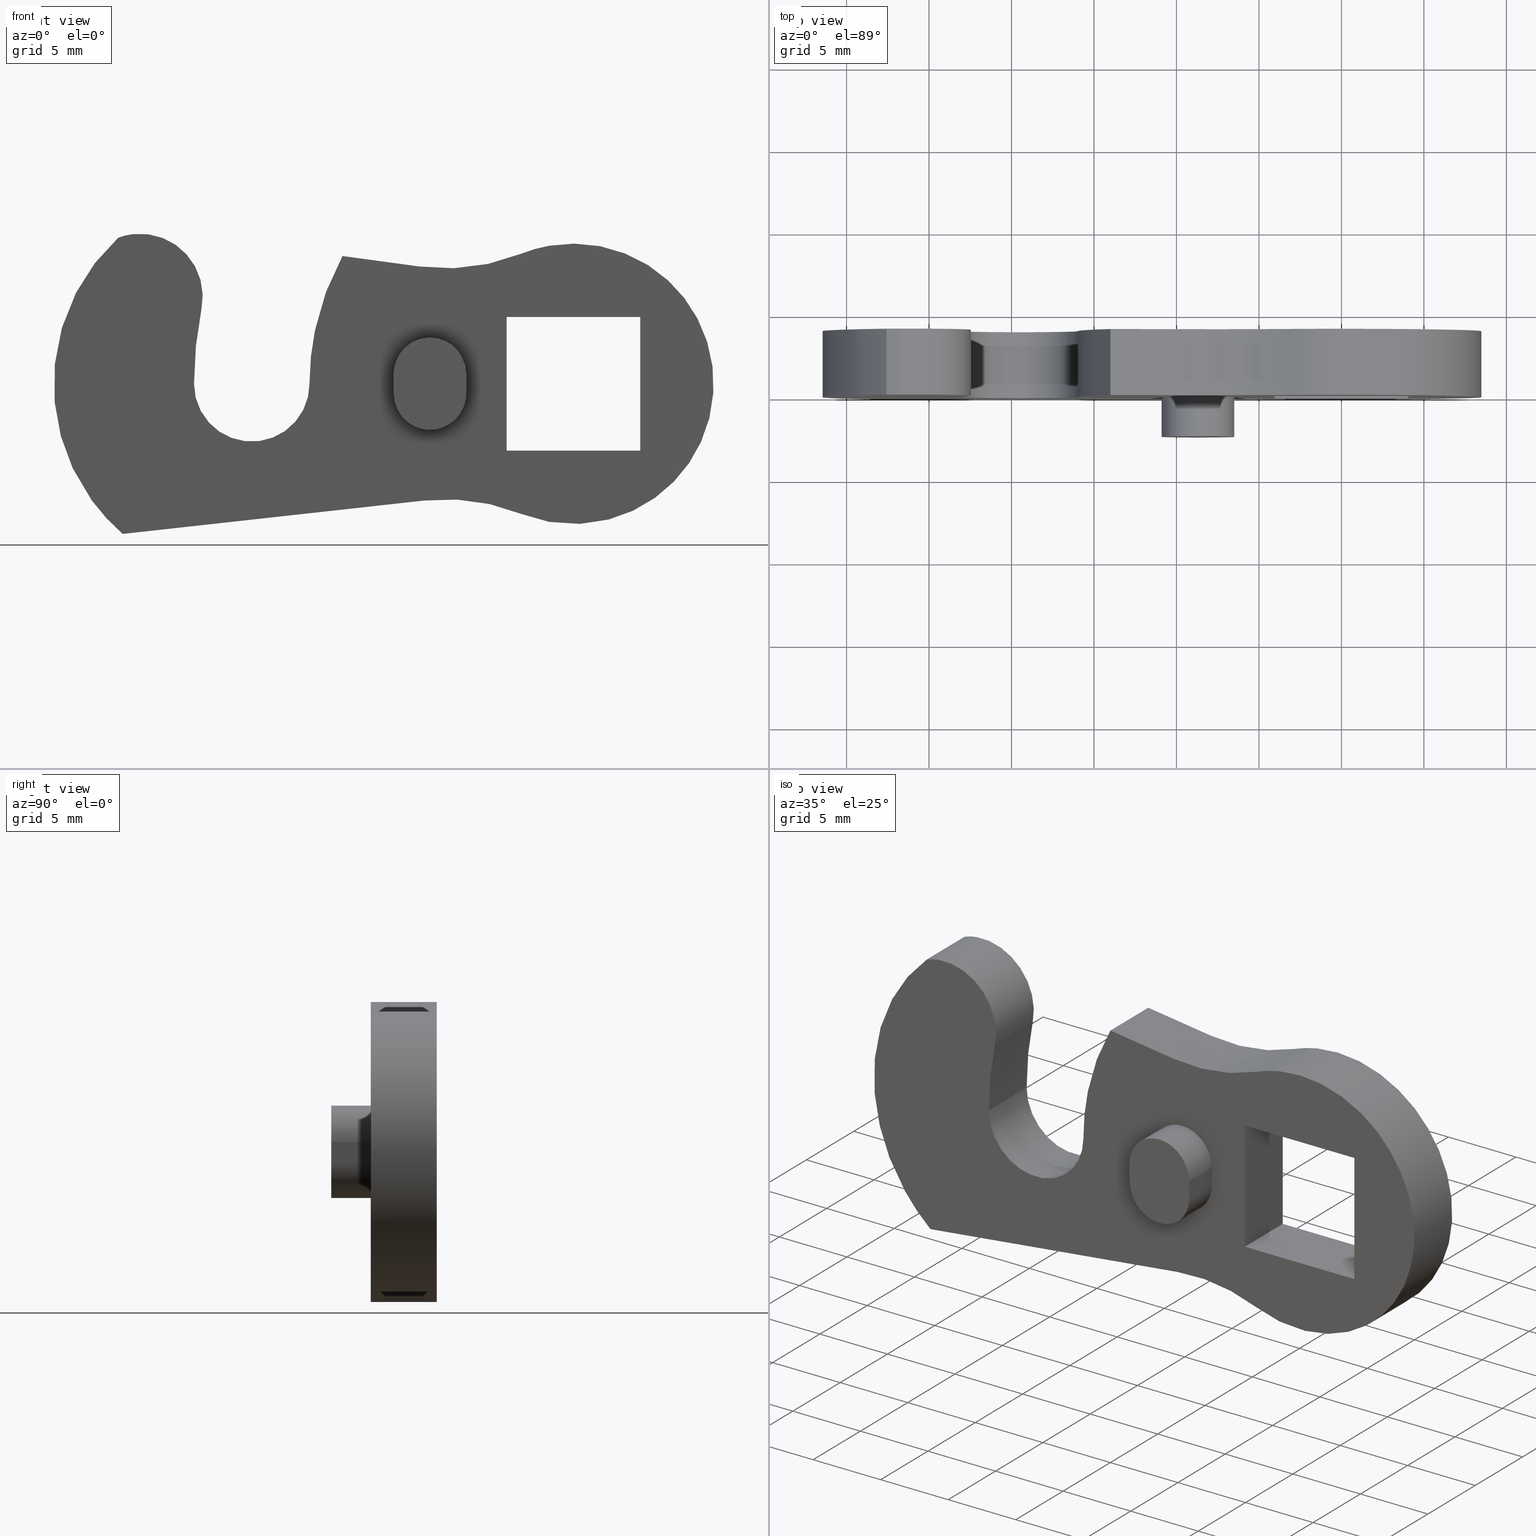
[diagram: canonical four-view strip — front | top / right | iso, engineering-drawing reading convention]
A machine part, canonical four-view strip (front | top / right | iso — engineering-drawing reading convention). The complete STEP part file that produces these views, byte-faithful:
ISO-10303-21;
HEADER;
/****************************************************************
 * Generated by software with PDE/Lib inside                    *
 * PDElib Version 4.4.1-0003, patched  Thursday August 19 11:58 *
 * International Technegroup Inc. (www.iti-oh.com)              *
 ****************************************************************/
FILE_DESCRIPTION((''),'2;1');
FILE_NAME('','2006-10-31T08:06:03',(''),(''),'','CADfix','');
FILE_SCHEMA(('AUTOMOTIVE_DESIGN'));
ENDSEC;
DATA;
#5=APPLICATION_CONTEXT('automotive design');
#6=APPLICATION_PROTOCOL_DEFINITION('Draft International Standard','automotive_design',1998,#5);
#7=PRODUCT_CONTEXT('None',#5,'mechanical');
#8=PRODUCT('cam','cam','None',(#7));
#9=PRODUCT_RELATED_PRODUCT_CATEGORY('part','description',(#8));
#10=PRODUCT_DEFINITION_FORMATION('','None',#8);
#11=PRODUCT_DEFINITION_CONTEXT('part definition',#5,'design');
#12=PRODUCT_DEFINITION('None','None',#10,#11);
#18=(NAMED_UNIT(*)PLANE_ANGLE_UNIT()SI_UNIT($,.RADIAN.));
#19=DIMENSIONAL_EXPONENTS(0.0,0.0,0.0,0.0,0.0,0.0,0.0);
#20=PLANE_ANGLE_MEASURE_WITH_UNIT(PLANE_ANGLE_MEASURE(0.017453292500000),#18);
#24=(CONVERSION_BASED_UNIT('DEGREE',#20)NAMED_UNIT(#19)PLANE_ANGLE_UNIT());
#28=(NAMED_UNIT(*)SI_UNIT($,.STERADIAN.)SOLID_ANGLE_UNIT());
#32=(LENGTH_UNIT()NAMED_UNIT(*)SI_UNIT(.MILLI.,.METRE.));
#34=UNCERTAINTY_MEASURE_WITH_UNIT(LENGTH_MEASURE(0.001000000000000),#32,'DISTANCE_ACCURACY_VALUE','');
#36=(GEOMETRIC_REPRESENTATION_CONTEXT(3)GLOBAL_UNCERTAINTY_ASSIGNED_CONTEXT((#34))GLOBAL_UNIT_ASSIGNED_CONTEXT((#24,#28,#32))REPRESENTATION_CONTEXT('None','None'));
#37=AXIS2_PLACEMENT_3D('',#38,#39,#40);
#38=CARTESIAN_POINT('',(0.0,0.0,0.0));
#39=DIRECTION('',(0.0,0.0,1.0));
#40=DIRECTION('',(1.0,0.0,0.0));
#41=ADVANCED_BREP_SHAPE_REPRESENTATION('',(#37,#1307),#36);
#42=PRODUCT_DEFINITION_SHAPE('','',#12);
#43=SHAPE_DEFINITION_REPRESENTATION(#42,#41);
#44=CARTESIAN_POINT('',(-7.199996123610986,1.501210509031663,-0.385725247616581));
#45=CARTESIAN_POINT('',(-6.952937108105671,1.501210509031663,-2.115231545657094));
#46=CARTESIAN_POINT('',(-8.700000413227800,1.501210509031662,-2.115231545657095));
#47=CARTESIAN_POINT('',(-10.447063738485864,1.501210509031663,-2.115231545657096));
#48=CARTESIAN_POINT('',(-10.200004700399793,1.501210509031663,-0.385725230501889));
#49=CARTESIAN_POINT('',(-6.632222620562474,1.461231584098420,-0.304619117588551));
#50=CARTESIAN_POINT('',(-6.291648164025316,1.461231584098421,-2.688768776438240));
#51=CARTESIAN_POINT('',(-8.700000413227803,1.461231584098420,-2.688768776438239));
#52=CARTESIAN_POINT('',(-11.108352690187958,1.461231584098421,-2.688768776438240));
#53=CARTESIAN_POINT('',(-10.767778202522903,1.461231584098420,-0.304619093995699));
#54=CARTESIAN_POINT('',(-6.671799826790315,2.034768811564203,-0.310272699549010));
#55=CARTESIAN_POINT('',(-6.337743955349739,2.034768811564202,-2.648789803942878));
#56=CARTESIAN_POINT('',(-8.700000413227800,2.034768811564203,-2.648789803942878));
#57=CARTESIAN_POINT('',(-11.062256898332254,2.034768811564203,-2.648789803942879));
#58=CARTESIAN_POINT('',(-10.728200996359567,2.034768811564203,-0.310272676407725));
#66=(BOUNDED_SURFACE()B_SPLINE_SURFACE(2,2,((#44,#49,#54),(#45,#50,#55),(#46,#51,#56),(#47,#52,#57),(#48,#53,#58)),.UNSPECIFIED.,.F.,.F.,.U.)B_SPLINE_SURFACE_WITH_KNOTS((3,2,3),(3,3),(0.0,3.740336792614788,7.480673613377427),(0.0,0.911187067987183),.UNSPECIFIED.)GEOMETRIC_REPRESENTATION_ITEM()RATIONAL_B_SPLINE_SURFACE(((0.912907162955358,0.599072425424881,0.912907197446197),(0.600218010976419,0.393878013242103,0.600218033653449),(0.919258318588525,0.603240211990489,0.919258353319319),(0.600218008575486,0.393878011666551,0.600218031252515),(0.912907167661634,0.599072428513257,0.912907202152472)))REPRESENTATION_ITEM('')SURFACE());
#67=CARTESIAN_POINT('',(-10.750000510597561,2.000000189989580,-0.600000028498471));
#68=VERTEX_POINT('',#67);
#69=CARTESIAN_POINT('',(-10.250000510597600,1.500000189989605,-0.600000028498471));
#70=VERTEX_POINT('',#69);
#71=CARTESIAN_POINT('',(-10.750000510597561,2.000000189989580,-0.600000028498471));
#72=CARTESIAN_POINT('',(-10.750000510597600,1.500000189989606,-0.600000028498471));
#73=CARTESIAN_POINT('',(-10.250000510597600,1.500000189989605,-0.600000028498471));
#81=(BOUNDED_CURVE()B_SPLINE_CURVE(2,(#71,#72,#73),.UNSPECIFIED.,.F.,.U.)CURVE()GEOMETRIC_REPRESENTATION_ITEM()QUASI_UNIFORM_CURVE()RATIONAL_B_SPLINE_CURVE((1.0,0.707106781186548,1.0))REPRESENTATION_ITEM(''));
#82=EDGE_CURVE('',#68,#70,#81,.T.);
#83=ORIENTED_EDGE('',*,*,#82,.T.);
#84=CARTESIAN_POINT('',(-7.150000315857990,1.500000189989605,-0.600000028498471));
#85=VERTEX_POINT('',#84);
#86=CARTESIAN_POINT('',(-7.150000315857990,1.500000189989605,-0.600000028498471));
#87=CARTESIAN_POINT('',(-7.150000315858030,1.500000189989605,-2.150000125868241));
#88=CARTESIAN_POINT('',(-8.700000413227800,1.500000189989605,-2.150000125868241));
#89=CARTESIAN_POINT('',(-10.250000510597570,1.500000189989605,-2.150000125868241));
#90=CARTESIAN_POINT('',(-10.250000510597570,1.500000189989605,-0.600000028498471));
#98=(BOUNDED_CURVE()B_SPLINE_CURVE(2,(#86,#87,#88,#89,#90),.UNSPECIFIED.,.F.,.U.)B_SPLINE_CURVE_WITH_KNOTS((3,2,3),(0.0,0.500000000000000,1.0),.UNSPECIFIED.)CURVE()GEOMETRIC_REPRESENTATION_ITEM()RATIONAL_B_SPLINE_CURVE((1.0,0.707106781186548,1.0,0.707106781186548,1.0))REPRESENTATION_ITEM(''));
#99=EDGE_CURVE('',#85,#70,#98,.T.);
#100=ORIENTED_EDGE('',*,*,#99,.F.);
#101=CARTESIAN_POINT('',(-6.650000315857991,2.000000189989580,-0.600000028498471));
#102=VERTEX_POINT('',#101);
#103=CARTESIAN_POINT('',(-7.150000315857990,1.500000189989605,-0.600000028498471));
#104=CARTESIAN_POINT('',(-6.650000315857990,1.500000189989606,-0.600000028498471));
#105=CARTESIAN_POINT('',(-6.650000315857991,2.000000189989605,-0.600000028498471));
#113=(BOUNDED_CURVE()B_SPLINE_CURVE(2,(#103,#104,#105),.UNSPECIFIED.,.F.,.U.)CURVE()GEOMETRIC_REPRESENTATION_ITEM()QUASI_UNIFORM_CURVE()RATIONAL_B_SPLINE_CURVE((1.0,0.707106781186548,1.0))REPRESENTATION_ITEM(''));
#114=EDGE_CURVE('',#85,#102,#113,.T.);
#115=ORIENTED_EDGE('',*,*,#114,.T.);
#116=CARTESIAN_POINT('',(-10.750000510597570,2.000000189989580,-0.600000028498471));
#117=CARTESIAN_POINT('',(-10.750000510597570,2.000000189989581,-2.650000125868240));
#118=CARTESIAN_POINT('',(-8.700000413227800,2.000000189989580,-2.650000125868241));
#119=CARTESIAN_POINT('',(-6.650000315858031,2.000000189989581,-2.650000125868240));
#120=CARTESIAN_POINT('',(-6.650000315857991,2.000000189989580,-0.600000028498471));
#128=(BOUNDED_CURVE()B_SPLINE_CURVE(2,(#116,#117,#118,#119,#120),.UNSPECIFIED.,.F.,.U.)B_SPLINE_CURVE_WITH_KNOTS((3,2,3),(0.0,0.500000000000000,1.0),.UNSPECIFIED.)CURVE()GEOMETRIC_REPRESENTATION_ITEM()RATIONAL_B_SPLINE_CURVE((1.0,0.707106781186548,1.0,0.707106781186548,1.0))REPRESENTATION_ITEM(''));
#129=EDGE_CURVE('',#68,#102,#128,.T.);
#130=ORIENTED_EDGE('',*,*,#129,.F.);
#131=EDGE_LOOP('',(#83,#100,#115,#130));
#132=FACE_OUTER_BOUND('',#131,.T.);
#133=ADVANCED_FACE('',(#132),#66,.F.);
#134=CARTESIAN_POINT('',(-7.171810009540684,1.500476079198678,0.630000029923395));
#135=CARTESIAN_POINT('',(-7.171810009540684,1.500476079198678,-0.630750029959018));
#136=CARTESIAN_POINT('',(-6.611970142824902,1.476032942740062,0.630000029923395));
#137=CARTESIAN_POINT('',(-6.611970142824902,1.476032942740062,-0.630750029959018));
#138=CARTESIAN_POINT('',(-6.651228861778602,2.035029272129078,0.630000029923395));
#139=CARTESIAN_POINT('',(-6.651228861778602,2.035029272129078,-0.630750029959018));
#147=(BOUNDED_SURFACE()B_SPLINE_SURFACE(1,2,((#134,#136,#138),(#135,#137,#139)),.UNSPECIFIED.,.F.,.F.,.U.)B_SPLINE_SURFACE_WITH_KNOTS((2,2),(3,3),(0.0,1.0),(0.0,0.994386643127818),.UNSPECIFIED.)GEOMETRIC_REPRESENTATION_ITEM()RATIONAL_B_SPLINE_SURFACE(((1.0,0.664513882286622,0.996233593391224),(1.0,0.664513882286622,0.996233593391224)))REPRESENTATION_ITEM('')SURFACE());
#148=CARTESIAN_POINT('',(-7.150000315858030,1.500000189989605,0.600000028498471));
#149=VERTEX_POINT('',#148);
#150=CARTESIAN_POINT('',(-6.650000315858031,2.000000189989580,0.600000028498471));
#151=VERTEX_POINT('',#150);
#152=CARTESIAN_POINT('',(-7.150000315858030,1.500000189989605,0.600000028498471));
#153=CARTESIAN_POINT('',(-6.650000315858031,1.500000189989606,0.600000028498471));
#154=CARTESIAN_POINT('',(-6.650000315858031,2.000000189989605,0.600000028498471));
#162=(BOUNDED_CURVE()B_SPLINE_CURVE(2,(#152,#153,#154),.UNSPECIFIED.,.F.,.U.)CURVE()GEOMETRIC_REPRESENTATION_ITEM()QUASI_UNIFORM_CURVE()RATIONAL_B_SPLINE_CURVE((1.0,0.707106781186548,1.0))REPRESENTATION_ITEM(''));
#163=EDGE_CURVE('',#149,#151,#162,.T.);
#164=ORIENTED_EDGE('',*,*,#163,.T.);
#165=CARTESIAN_POINT('',(-6.650000315857991,2.000000189989580,-0.600000028498471));
#166=CARTESIAN_POINT('',(-6.650000315858031,2.000000189989580,0.600000028498471));
#167=QUASI_UNIFORM_CURVE('',1,(#165,#166),.UNSPECIFIED.,.F.,.U.);
#168=EDGE_CURVE('',#102,#151,#167,.T.);
#169=ORIENTED_EDGE('',*,*,#168,.F.);
#170=ORIENTED_EDGE('',*,*,#114,.F.);
#171=CARTESIAN_POINT('',(-7.150000315858030,1.500000189989605,0.600000028498471));
#172=CARTESIAN_POINT('',(-7.150000315857990,1.500000189989605,-0.600000028498471));
#173=QUASI_UNIFORM_CURVE('',1,(#171,#172),.UNSPECIFIED.,.F.,.U.);
#174=EDGE_CURVE('',#149,#85,#173,.T.);
#175=ORIENTED_EDGE('',*,*,#174,.F.);
#176=EDGE_LOOP('',(#164,#169,#170,#175));
#177=FACE_OUTER_BOUND('',#176,.T.);
#178=ADVANCED_FACE('',(#177),#147,.F.);
#179=CARTESIAN_POINT('',(-10.236912036443639,1.500171527501828,-0.630000029923395));
#180=CARTESIAN_POINT('',(-10.236912036443639,1.500171527501828,0.630750029959018));
#181=CARTESIAN_POINT('',(-10.787492989892110,1.485754057837310,-0.630000029923395));
#182=CARTESIAN_POINT('',(-10.787492989892110,1.485754057837310,0.630750029959018));
#183=CARTESIAN_POINT('',(-10.748762745265482,2.035160299049509,-0.630000029923395));
#184=CARTESIAN_POINT('',(-10.748762745265482,2.035160299049509,0.630750029959018));
#192=(BOUNDED_SURFACE()B_SPLINE_SURFACE(1,2,((#179,#181,#183),(#180,#182,#184)),.UNSPECIFIED.,.F.,.F.,.U.)B_SPLINE_SURFACE_WITH_KNOTS((2,2),(3,3),(0.0,1.0),(0.0,0.994518728097621),.UNSPECIFIED.)GEOMETRIC_REPRESENTATION_ITEM()RATIONAL_B_SPLINE_SURFACE(((1.0,0.670944191469580,0.996392711284775),(1.0,0.670944191469580,0.996392711284775)))REPRESENTATION_ITEM('')SURFACE());
#193=CARTESIAN_POINT('',(-10.750000510597561,2.000000189989580,0.600000028498471));
#194=VERTEX_POINT('',#193);
#195=CARTESIAN_POINT('',(-10.250000510597600,1.500000189989605,0.600000028498471));
#196=VERTEX_POINT('',#195);
#197=CARTESIAN_POINT('',(-10.750000510597561,2.000000189989580,0.600000028498471));
#198=CARTESIAN_POINT('',(-10.750000510597561,1.500000189989580,0.600000028498471));
#199=CARTESIAN_POINT('',(-10.250000510597600,1.500000189989605,0.600000028498471));
#207=(BOUNDED_CURVE()B_SPLINE_CURVE(2,(#197,#198,#199),.UNSPECIFIED.,.F.,.U.)CURVE()GEOMETRIC_REPRESENTATION_ITEM()QUASI_UNIFORM_CURVE()RATIONAL_B_SPLINE_CURVE((1.0,0.707106781186548,1.0))REPRESENTATION_ITEM(''));
#208=EDGE_CURVE('',#194,#196,#207,.T.);
#209=ORIENTED_EDGE('',*,*,#208,.T.);
#210=CARTESIAN_POINT('',(-10.250000510597600,1.500000189989605,-0.600000028498471));
#211=CARTESIAN_POINT('',(-10.250000510597600,1.500000189989605,0.600000028498471));
#212=QUASI_UNIFORM_CURVE('',1,(#210,#211),.UNSPECIFIED.,.F.,.U.);
#213=EDGE_CURVE('',#70,#196,#212,.T.);
#214=ORIENTED_EDGE('',*,*,#213,.F.);
#215=ORIENTED_EDGE('',*,*,#82,.F.);
#216=CARTESIAN_POINT('',(-10.750000510597561,2.000000189989580,0.600000028498471));
#217=CARTESIAN_POINT('',(-10.750000510597561,2.000000189989580,-0.600000028498471));
#218=QUASI_UNIFORM_CURVE('',1,(#216,#217),.UNSPECIFIED.,.F.,.U.);
#219=EDGE_CURVE('',#194,#68,#218,.T.);
#220=ORIENTED_EDGE('',*,*,#219,.F.);
#221=EDGE_LOOP('',(#209,#214,#215,#220));
#222=FACE_OUTER_BOUND('',#221,.T.);
#223=ADVANCED_FACE('',(#222),#192,.F.);
#224=CARTESIAN_POINT('',(-10.200004702844616,1.501210509031663,0.385725247616581));
#225=CARTESIAN_POINT('',(-10.447063718349931,1.501210509031663,2.115231545657094));
#226=CARTESIAN_POINT('',(-8.700000413227800,1.501210509031662,2.115231545657095));
#227=CARTESIAN_POINT('',(-6.952937087969742,1.501210509031663,2.115231545657096));
#228=CARTESIAN_POINT('',(-7.199996126055811,1.501210509031663,0.385725230501889));
#229=CARTESIAN_POINT('',(-10.767778205893126,1.461231584098420,0.304619117588551));
#230=CARTESIAN_POINT('',(-11.108352662430285,1.461231584098421,2.688768776438240));
#231=CARTESIAN_POINT('',(-8.700000413227803,1.461231584098420,2.688768776438239));
#232=CARTESIAN_POINT('',(-6.291648136267644,1.461231584098421,2.688768776438240));
#233=CARTESIAN_POINT('',(-6.632222623932699,1.461231584098420,0.304619093995699));
#234=CARTESIAN_POINT('',(-10.728200999665283,2.034768811564203,0.310272699549010));
#235=CARTESIAN_POINT('',(-11.062256871105863,2.034768811564202,2.648789803942878));
#236=CARTESIAN_POINT('',(-8.700000413227800,2.034768811564203,2.648789803942878));
#237=CARTESIAN_POINT('',(-6.337743928123344,2.034768811564203,2.648789803942879));
#238=CARTESIAN_POINT('',(-6.671799830096036,2.034768811564203,0.310272676407724));
#246=(BOUNDED_SURFACE()B_SPLINE_SURFACE(2,2,((#224,#229,#234),(#225,#230,#235),(#226,#231,#236),(#227,#232,#237),(#228,#233,#238)),.UNSPECIFIED.,.F.,.F.,.U.)B_SPLINE_SURFACE_WITH_KNOTS((3,2,3),(3,3),(0.0,3.740336792614788,7.480673613377427),(0.0,0.911187067987182),.UNSPECIFIED.)GEOMETRIC_REPRESENTATION_ITEM()RATIONAL_B_SPLINE_SURFACE(((0.912907162955358,0.599072425424881,0.912907197446197),(0.600218010976419,0.393878013242103,0.600218033653449),(0.919258318588525,0.603240211990489,0.919258353319319),(0.600218008575486,0.393878011666551,0.600218031252515),(0.912907167661634,0.599072428513257,0.912907202152472)))REPRESENTATION_ITEM('')SURFACE());
#247=ORIENTED_EDGE('',*,*,#163,.F.);
#248=CARTESIAN_POINT('',(-10.250000510597570,1.500000189989605,0.600000028498471));
#249=CARTESIAN_POINT('',(-10.250000510597570,1.500000189989605,2.150000125868241));
#250=CARTESIAN_POINT('',(-8.700000413227800,1.500000189989605,2.150000125868241));
#251=CARTESIAN_POINT('',(-7.150000315858030,1.500000189989605,2.150000125868241));
#252=CARTESIAN_POINT('',(-7.150000315858031,1.500000189989605,0.600000028498471));
#260=(BOUNDED_CURVE()B_SPLINE_CURVE(2,(#248,#249,#250,#251,#252),.UNSPECIFIED.,.F.,.U.)B_SPLINE_CURVE_WITH_KNOTS((3,2,3),(0.0,0.500000000000000,1.0),.UNSPECIFIED.)CURVE()GEOMETRIC_REPRESENTATION_ITEM()RATIONAL_B_SPLINE_CURVE((1.0,0.707106781186548,1.0,0.707106781186548,1.0))REPRESENTATION_ITEM(''));
#261=EDGE_CURVE('',#196,#149,#260,.T.);
#262=ORIENTED_EDGE('',*,*,#261,.F.);
#263=ORIENTED_EDGE('',*,*,#208,.F.);
#264=CARTESIAN_POINT('',(-6.650000315858031,2.000000189989580,0.600000028498471));
#265=CARTESIAN_POINT('',(-6.650000315858031,2.000000189989581,2.650000125868240));
#266=CARTESIAN_POINT('',(-8.700000413227800,2.000000189989580,2.650000125868241));
#267=CARTESIAN_POINT('',(-10.750000510597570,2.000000189989581,2.650000125868240));
#268=CARTESIAN_POINT('',(-10.750000510597570,2.000000189989580,0.600000028498471));
#276=(BOUNDED_CURVE()B_SPLINE_CURVE(2,(#264,#265,#266,#267,#268),.UNSPECIFIED.,.F.,.U.)B_SPLINE_CURVE_WITH_KNOTS((3,2,3),(0.0,0.500000000000000,1.0),.UNSPECIFIED.)CURVE()GEOMETRIC_REPRESENTATION_ITEM()RATIONAL_B_SPLINE_CURVE((1.0,0.707106781186548,1.0,0.707106781186548,1.0))REPRESENTATION_ITEM(''));
#277=EDGE_CURVE('',#151,#194,#276,.T.);
#278=ORIENTED_EDGE('',*,*,#277,.F.);
#279=EDGE_LOOP('',(#247,#262,#263,#278));
#280=FACE_OUTER_BOUND('',#279,.T.);
#281=ADVANCED_FACE('',(#280),#246,.F.);
#282=CARTESIAN_POINT('',(-10.404845991001160,1.500000189989605,2.364785130108078));
#283=CARTESIAN_POINT('',(-6.995154974035237,1.500000189989605,2.364785130108078));
#284=CARTESIAN_POINT('',(-10.404845991001160,1.500000189989605,-2.364785245443073));
#285=CARTESIAN_POINT('',(-6.995154974035237,1.500000189989605,-2.364785245443073));
#286=B_SPLINE_SURFACE_WITH_KNOTS('',1,1,((#282,#284),(#283,#285)),.UNSPECIFIED.,.F.,.F.,.U.,(2,2),(2,2),(0.0,3.409691016965925),(0.0,4.729570375551152),.UNSPECIFIED.);
#287=ORIENTED_EDGE('',*,*,#174,.T.);
#288=ORIENTED_EDGE('',*,*,#99,.T.);
#289=ORIENTED_EDGE('',*,*,#213,.T.);
#290=ORIENTED_EDGE('',*,*,#261,.T.);
#291=EDGE_LOOP('',(#287,#288,#289,#290));
#292=FACE_OUTER_BOUND('',#291,.T.);
#293=ADVANCED_FACE('',(#292),#286,.T.);
#294=CARTESIAN_POINT('',(-10.749922452875410,1.950000189989580,-0.582110629877105));
#295=CARTESIAN_POINT('',(-10.749922452875410,4.051250189989585,-0.582110629877105));
#296=CARTESIAN_POINT('',(-10.768447467443320,1.950000189989580,-2.704867042839602));
#297=CARTESIAN_POINT('',(-10.768447467443320,4.051250189989585,-2.704867042839602));
#298=CARTESIAN_POINT('',(-8.646337666647817,1.950000189989580,-2.649297642034767));
#299=CARTESIAN_POINT('',(-8.646337666647817,4.051250189989585,-2.649297642034767));
#300=CARTESIAN_POINT('',(-6.524227865852312,1.950000189989580,-2.593728241229932));
#301=CARTESIAN_POINT('',(-6.524227865852312,4.051250189989585,-2.593728241229932));
#302=CARTESIAN_POINT('',(-6.653823979274819,1.950000189989580,-0.474850516507733));
#303=CARTESIAN_POINT('',(-6.653823979274819,4.051250189989585,-0.474850516507733));
#311=(BOUNDED_SURFACE()B_SPLINE_SURFACE(1,2,((#294,#296,#298,#300,#302),(#295,#297,#299,#301,#303)),.UNSPECIFIED.,.F.,.F.,.U.)B_SPLINE_SURFACE_WITH_KNOTS((2,2),(3,2,3),(0.0,2.101250000000005),(0.0,3.480693658242819,6.961387316485638),.UNSPECIFIED.)GEOMETRIC_REPRESENTATION_ITEM()RATIONAL_B_SPLINE_SURFACE(((1.0,0.694658370458997,1.0,0.694658370458997,1.0),(1.0,0.694658370458997,1.0,0.694658370458997,1.0)))REPRESENTATION_ITEM('')SURFACE());
#312=CARTESIAN_POINT('',(-10.750000510597561,4.000000189989585,-0.600000028498471));
#313=VERTEX_POINT('',#312);
#314=CARTESIAN_POINT('',(-10.750000510597561,2.000000189989580,-0.600000028498471));
#315=CARTESIAN_POINT('',(-10.750000510597561,4.000000189989585,-0.600000028498471));
#316=QUASI_UNIFORM_CURVE('',1,(#314,#315),.UNSPECIFIED.,.F.,.U.);
#317=EDGE_CURVE('',#68,#313,#316,.T.);
#318=ORIENTED_EDGE('',*,*,#317,.F.);
#319=ORIENTED_EDGE('',*,*,#129,.T.);
#320=CARTESIAN_POINT('',(-6.650000315858031,4.000000189989585,-0.600000028498471));
#321=VERTEX_POINT('',#320);
#322=CARTESIAN_POINT('',(-6.650000315857991,2.000000189989580,-0.600000028498471));
#323=CARTESIAN_POINT('',(-6.650000315858031,4.000000189989585,-0.600000028498471));
#324=QUASI_UNIFORM_CURVE('',1,(#322,#323),.UNSPECIFIED.,.F.,.U.);
#325=EDGE_CURVE('',#102,#321,#324,.T.);
#326=ORIENTED_EDGE('',*,*,#325,.T.);
#327=CARTESIAN_POINT('',(-10.750000510597570,4.000000189989585,-0.600000028498471));
#328=CARTESIAN_POINT('',(-10.750000510597570,4.000000189989585,-2.650000125868240));
#329=CARTESIAN_POINT('',(-8.700000413227800,4.000000189989585,-2.650000125868241));
#330=CARTESIAN_POINT('',(-6.650000315858031,4.000000189989585,-2.650000125868240));
#331=CARTESIAN_POINT('',(-6.650000315858031,4.000000189989585,-0.600000028498471));
#339=(BOUNDED_CURVE()B_SPLINE_CURVE(2,(#327,#328,#329,#330,#331),.UNSPECIFIED.,.F.,.U.)B_SPLINE_CURVE_WITH_KNOTS((3,2,3),(0.0,0.500000000000000,1.0),.UNSPECIFIED.)CURVE()GEOMETRIC_REPRESENTATION_ITEM()RATIONAL_B_SPLINE_CURVE((1.0,0.707106781186548,1.0,0.707106781186548,1.0))REPRESENTATION_ITEM(''));
#340=EDGE_CURVE('',#313,#321,#339,.T.);
#341=ORIENTED_EDGE('',*,*,#340,.F.);
#342=EDGE_LOOP('',(#318,#319,#326,#341));
#343=FACE_OUTER_BOUND('',#342,.T.);
#344=ADVANCED_FACE('',(#343),#311,.F.);
#345=CARTESIAN_POINT('',(-6.650000315857991,1.900100245705915,0.659940029019635));
#346=CARTESIAN_POINT('',(-6.650000315857991,1.900100245705915,-0.659940061206145));
#347=CARTESIAN_POINT('',(-6.650000315857991,4.099899937577923,0.659940029019635));
#348=CARTESIAN_POINT('',(-6.650000315857991,4.099899937577923,-0.659940061206145));
#349=B_SPLINE_SURFACE_WITH_KNOTS('',1,1,((#345,#347),(#346,#348)),.UNSPECIFIED.,.F.,.F.,.U.,(2,2),(2,2),(0.041708334948495,0.958291687403247),(0.0,2.199799691872007),.UNSPECIFIED.);
#350=ORIENTED_EDGE('',*,*,#325,.F.);
#351=ORIENTED_EDGE('',*,*,#168,.T.);
#352=CARTESIAN_POINT('',(-6.650000315858031,4.000000189989585,0.600000028498471));
#353=VERTEX_POINT('',#352);
#354=CARTESIAN_POINT('',(-6.650000315858031,2.000000189989580,0.600000028498471));
#355=CARTESIAN_POINT('',(-6.650000315858031,4.000000189989585,0.600000028498471));
#356=QUASI_UNIFORM_CURVE('',1,(#354,#355),.UNSPECIFIED.,.F.,.U.);
#357=EDGE_CURVE('',#151,#353,#356,.T.);
#358=ORIENTED_EDGE('',*,*,#357,.T.);
#359=CARTESIAN_POINT('',(-6.650000315858031,4.000000189989585,0.600000028498471));
#360=CARTESIAN_POINT('',(-6.650000315858031,4.000000189989585,-0.600000028498471));
#361=QUASI_UNIFORM_CURVE('',1,(#359,#360),.UNSPECIFIED.,.F.,.U.);
#362=EDGE_CURVE('',#353,#321,#361,.T.);
#363=ORIENTED_EDGE('',*,*,#362,.T.);
#364=EDGE_LOOP('',(#350,#351,#358,#363));
#365=FACE_OUTER_BOUND('',#364,.T.);
#366=ADVANCED_FACE('',(#365),#349,.F.);
#367=CARTESIAN_POINT('',(-6.650078373580186,1.950000189989579,0.582110629877105));
#368=CARTESIAN_POINT('',(-6.650078373580186,4.051250189989585,0.582110629877105));
#369=CARTESIAN_POINT('',(-6.631553359012279,1.950000189989580,2.704867042839602));
#370=CARTESIAN_POINT('',(-6.631553359012279,4.051250189989585,2.704867042839602));
#371=CARTESIAN_POINT('',(-8.753663159807783,1.950000189989579,2.649297642034767));
#372=CARTESIAN_POINT('',(-8.753663159807783,4.051250189989585,2.649297642034767));
#373=CARTESIAN_POINT('',(-10.875772960603287,1.950000189989580,2.593728241229933));
#374=CARTESIAN_POINT('',(-10.875772960603287,4.051250189989585,2.593728241229933));
#375=CARTESIAN_POINT('',(-10.746176847180781,1.950000189989579,0.474850516507734));
#376=CARTESIAN_POINT('',(-10.746176847180781,4.051250189989585,0.474850516507734));
#384=(BOUNDED_SURFACE()B_SPLINE_SURFACE(1,2,((#367,#369,#371,#373,#375),(#368,#370,#372,#374,#376)),.UNSPECIFIED.,.F.,.F.,.U.)B_SPLINE_SURFACE_WITH_KNOTS((2,2),(3,2,3),(0.0,2.101250000000006),(0.0,3.480693658242820,6.961387316485640),.UNSPECIFIED.)GEOMETRIC_REPRESENTATION_ITEM()RATIONAL_B_SPLINE_SURFACE(((1.0,0.694658370458997,1.0,0.694658370458997,1.0),(1.0,0.694658370458997,1.0,0.694658370458997,1.0)))REPRESENTATION_ITEM('')SURFACE());
#385=ORIENTED_EDGE('',*,*,#357,.F.);
#386=ORIENTED_EDGE('',*,*,#277,.T.);
#387=CARTESIAN_POINT('',(-10.750000510597561,4.000000189989585,0.600000028498471));
#388=VERTEX_POINT('',#387);
#389=CARTESIAN_POINT('',(-10.750000510597561,2.000000189989580,0.600000028498471));
#390=CARTESIAN_POINT('',(-10.750000510597561,4.000000189989585,0.600000028498471));
#391=QUASI_UNIFORM_CURVE('',1,(#389,#390),.UNSPECIFIED.,.F.,.U.);
#392=EDGE_CURVE('',#194,#388,#391,.T.);
#393=ORIENTED_EDGE('',*,*,#392,.T.);
#394=CARTESIAN_POINT('',(-6.650000315858031,4.000000189989585,0.600000028498471));
#395=CARTESIAN_POINT('',(-6.650000315858031,4.000000189989585,2.650000125868240));
#396=CARTESIAN_POINT('',(-8.700000413227800,4.000000189989585,2.650000125868241));
#397=CARTESIAN_POINT('',(-10.750000510597570,4.000000189989585,2.650000125868240));
#398=CARTESIAN_POINT('',(-10.750000510597570,4.000000189989585,0.600000028498471));
#406=(BOUNDED_CURVE()B_SPLINE_CURVE(2,(#394,#395,#396,#397,#398),.UNSPECIFIED.,.F.,.U.)B_SPLINE_CURVE_WITH_KNOTS((3,2,3),(0.0,0.500000000000000,1.0),.UNSPECIFIED.)CURVE()GEOMETRIC_REPRESENTATION_ITEM()RATIONAL_B_SPLINE_CURVE((1.0,0.707106781186548,1.0,0.707106781186548,1.0))REPRESENTATION_ITEM(''));
#407=EDGE_CURVE('',#353,#388,#406,.T.);
#408=ORIENTED_EDGE('',*,*,#407,.F.);
#409=EDGE_LOOP('',(#385,#386,#393,#408));
#410=FACE_OUTER_BOUND('',#409,.T.);
#411=ADVANCED_FACE('',(#410),#384,.F.);
#412=CARTESIAN_POINT('',(-10.750000510597600,1.900100245705915,-0.659940029019635));
#413=CARTESIAN_POINT('',(-10.750000510597600,1.900100245705915,0.659940061206145));
#414=CARTESIAN_POINT('',(-10.750000510597600,4.099899937577923,-0.659940029019635));
#415=CARTESIAN_POINT('',(-10.750000510597600,4.099899937577923,0.659940061206145));
#416=B_SPLINE_SURFACE_WITH_KNOTS('',1,1,((#412,#414),(#413,#415)),.UNSPECIFIED.,.F.,.F.,.U.,(2,2),(2,2),(0.041708334948495,0.958291687403247),(0.0,2.199799691872007),.UNSPECIFIED.);
#417=ORIENTED_EDGE('',*,*,#392,.F.);
#418=ORIENTED_EDGE('',*,*,#219,.T.);
#419=ORIENTED_EDGE('',*,*,#317,.T.);
#420=CARTESIAN_POINT('',(-10.750000510597561,4.000000189989585,-0.600000028498471));
#421=CARTESIAN_POINT('',(-10.750000510597561,4.000000189989585,0.600000028498471));
#422=QUASI_UNIFORM_CURVE('',1,(#420,#421),.UNSPECIFIED.,.F.,.U.);
#423=EDGE_CURVE('',#313,#388,#422,.T.);
#424=ORIENTED_EDGE('',*,*,#423,.T.);
#425=EDGE_LOOP('',(#417,#418,#419,#424));
#426=FACE_OUTER_BOUND('',#425,.T.);
#427=ADVANCED_FACE('',(#426),#416,.F.);
#428=CARTESIAN_POINT('',(-11.119780586521379,-2.400000113993900,-3.079720187993694));
#429=CARTESIAN_POINT('',(-6.280220515307740,-2.400000113993900,-3.079720187993694));
#430=CARTESIAN_POINT('',(-11.119780586521371,-2.400000113993900,3.079720288129463));
#431=CARTESIAN_POINT('',(-6.280220515307740,-2.400000113993900,3.079720288129463));
#432=B_SPLINE_SURFACE_WITH_KNOTS('',1,1,((#428,#430),(#429,#431)),.UNSPECIFIED.,.F.,.F.,.U.,(2,2),(2,2),(0.0,4.839560071213636),(0.0,6.159440476123157),.UNSPECIFIED.);
#433=CARTESIAN_POINT('',(-6.500000308733420,-2.400000113993885,-0.600000028498486));
#434=VERTEX_POINT('',#433);
#435=CARTESIAN_POINT('',(-6.500000308733430,-2.400000113993885,0.600000028498457));
#436=VERTEX_POINT('',#435);
#437=CARTESIAN_POINT('',(-6.500000308733420,-2.400000113993885,-0.600000028498486));
#438=CARTESIAN_POINT('',(-6.500000308733430,-2.400000113993885,0.600000028498457));
#439=QUASI_UNIFORM_CURVE('',1,(#437,#438),.UNSPECIFIED.,.F.,.U.);
#440=EDGE_CURVE('',#434,#436,#439,.T.);
#441=ORIENTED_EDGE('',*,*,#440,.T.);
#442=CARTESIAN_POINT('',(-10.900000517722200,-2.400000113993885,0.600000028498457));
#443=VERTEX_POINT('',#442);
#444=CARTESIAN_POINT('',(-6.500000308733426,-2.400000113993885,0.600000028498457));
#445=CARTESIAN_POINT('',(-6.500000308733426,-2.400000113993885,2.800000132992842));
#446=CARTESIAN_POINT('',(-8.700000413227810,-2.400000113993885,2.800000132992842));
#447=CARTESIAN_POINT('',(-10.900000517722194,-2.400000113993885,2.800000132992842));
#448=CARTESIAN_POINT('',(-10.900000517722191,-2.400000113993885,0.600000028498457));
#456=(BOUNDED_CURVE()B_SPLINE_CURVE(2,(#444,#445,#446,#447,#448),.UNSPECIFIED.,.F.,.U.)B_SPLINE_CURVE_WITH_KNOTS((3,2,3),(0.0,0.500000000000000,1.0),.UNSPECIFIED.)CURVE()GEOMETRIC_REPRESENTATION_ITEM()RATIONAL_B_SPLINE_CURVE((1.0,0.707106781186547,1.0,0.707106781186547,1.0))REPRESENTATION_ITEM(''));
#457=EDGE_CURVE('',#436,#443,#456,.T.);
#458=ORIENTED_EDGE('',*,*,#457,.T.);
#459=CARTESIAN_POINT('',(-10.900000517722219,-2.400000113993885,-0.600000028498485));
#460=VERTEX_POINT('',#459);
#461=CARTESIAN_POINT('',(-10.900000517722200,-2.400000113993885,0.600000028498457));
#462=CARTESIAN_POINT('',(-10.900000517722219,-2.400000113993885,-0.600000028498485));
#463=QUASI_UNIFORM_CURVE('',1,(#461,#462),.UNSPECIFIED.,.F.,.U.);
#464=EDGE_CURVE('',#443,#460,#463,.T.);
#465=ORIENTED_EDGE('',*,*,#464,.T.);
#466=CARTESIAN_POINT('',(-10.900000517722210,-2.400000113993885,-0.600000028498485));
#467=CARTESIAN_POINT('',(-10.900000517722205,-2.400000113993885,-2.800000132992881));
#468=CARTESIAN_POINT('',(-8.700000413227810,-2.400000113993885,-2.800000132992880));
#469=CARTESIAN_POINT('',(-6.500000308733416,-2.400000113993885,-2.800000132992881));
#470=CARTESIAN_POINT('',(-6.500000308733416,-2.400000113993885,-0.600000028498485));
#478=(BOUNDED_CURVE()B_SPLINE_CURVE(2,(#466,#467,#468,#469,#470),.UNSPECIFIED.,.F.,.U.)B_SPLINE_CURVE_WITH_KNOTS((3,2,3),(0.0,0.500000000000000,1.0),.UNSPECIFIED.)CURVE()GEOMETRIC_REPRESENTATION_ITEM()RATIONAL_B_SPLINE_CURVE((1.0,0.707106781186548,1.0,0.707106781186548,1.0))REPRESENTATION_ITEM(''));
#479=EDGE_CURVE('',#460,#434,#478,.T.);
#480=ORIENTED_EDGE('',*,*,#479,.T.);
#481=EDGE_LOOP('',(#441,#458,#465,#480));
#482=FACE_OUTER_BOUND('',#481,.T.);
#483=ADVANCED_FACE('',(#482),#432,.T.);
#484=CARTESIAN_POINT('',(-10.899246632632620,-2.460000116843732,-0.542410739485817));
#485=CARTESIAN_POINT('',(-10.899246632632620,0.061500002921093,-0.542410739485817));
#486=CARTESIAN_POINT('',(-10.959405188766226,-2.460000116843732,-2.839773311761538));
#487=CARTESIAN_POINT('',(-10.959405188766226,0.061500002921093,-2.839773311761538));
#488=CARTESIAN_POINT('',(-8.661605117242115,-2.460000116843732,-2.799665062321025));
#489=CARTESIAN_POINT('',(-8.661605117242115,0.061500002921093,-2.799665062321025));
#490=CARTESIAN_POINT('',(-6.363805045718005,-2.460000116843732,-2.759556812880516));
#491=CARTESIAN_POINT('',(-6.363805045718005,0.061500002921093,-2.759556812880516));
#492=CARTESIAN_POINT('',(-6.504103752400213,-2.460000116843732,-0.465693235142578));
#493=CARTESIAN_POINT('',(-6.504103752400213,0.061500002921093,-0.465693235142578));
#501=(BOUNDED_SURFACE()B_SPLINE_SURFACE(1,2,((#484,#486,#488,#490,#492),(#485,#487,#489,#491,#493)),.UNSPECIFIED.,.F.,.F.,.U.)B_SPLINE_SURFACE_WITH_KNOTS((2,2),(3,2,3),(0.0,2.521500119764826),(0.0,3.758057406845123,7.516114813690246),.UNSPECIFIED.)GEOMETRIC_REPRESENTATION_ITEM()RATIONAL_B_SPLINE_SURFACE(((1.0,0.691513055782269,1.0,0.691513055782269,1.0),(1.0,0.691513055782269,1.0,0.691513055782269,1.0)))REPRESENTATION_ITEM('')SURFACE());
#502=CARTESIAN_POINT('',(-10.900000517722200,0.0,-0.600000028498485));
#503=VERTEX_POINT('',#502);
#504=CARTESIAN_POINT('',(-6.500000308733420,0.0,-0.600000028498486));
#505=VERTEX_POINT('',#504);
#506=CARTESIAN_POINT('',(-10.900000517722210,0.0,-0.600000028498485));
#507=CARTESIAN_POINT('',(-10.900000517722205,0.0,-2.800000132992881));
#508=CARTESIAN_POINT('',(-8.700000413227810,0.0,-2.800000132992880));
#509=CARTESIAN_POINT('',(-6.500000308733416,0.0,-2.800000132992881));
#510=CARTESIAN_POINT('',(-6.500000308733416,0.0,-0.600000028498485));
#518=(BOUNDED_CURVE()B_SPLINE_CURVE(2,(#506,#507,#508,#509,#510),.UNSPECIFIED.,.F.,.U.)B_SPLINE_CURVE_WITH_KNOTS((3,2,3),(0.0,0.500000000000000,1.0),.UNSPECIFIED.)CURVE()GEOMETRIC_REPRESENTATION_ITEM()RATIONAL_B_SPLINE_CURVE((1.0,0.707106781186548,1.0,0.707106781186548,1.0))REPRESENTATION_ITEM(''));
#519=EDGE_CURVE('',#503,#505,#518,.T.);
#520=ORIENTED_EDGE('',*,*,#519,.T.);
#521=CARTESIAN_POINT('',(-6.500000308733420,-2.400000113993885,-0.600000028498486));
#522=CARTESIAN_POINT('',(-6.500000308733420,0.0,-0.600000028498486));
#523=QUASI_UNIFORM_CURVE('',1,(#521,#522),.UNSPECIFIED.,.F.,.U.);
#524=EDGE_CURVE('',#434,#505,#523,.T.);
#525=ORIENTED_EDGE('',*,*,#524,.F.);
#526=ORIENTED_EDGE('',*,*,#479,.F.);
#527=CARTESIAN_POINT('',(-10.900000517722219,-2.400000113993885,-0.600000028498485));
#528=CARTESIAN_POINT('',(-10.900000517722200,0.0,-0.600000028498485));
#529=QUASI_UNIFORM_CURVE('',1,(#527,#528),.UNSPECIFIED.,.F.,.U.);
#530=EDGE_CURVE('',#460,#503,#529,.T.);
#531=ORIENTED_EDGE('',*,*,#530,.T.);
#532=EDGE_LOOP('',(#520,#525,#526,#531));
#533=FACE_OUTER_BOUND('',#532,.T.);
#534=ADVANCED_FACE('',(#533),#501,.T.);
#535=CARTESIAN_POINT('',(-10.900000517722219,-2.519880092506730,0.659940029019621));
#536=CARTESIAN_POINT('',(-10.900000517722219,-2.519880092506730,-0.659940061206159));
#537=CARTESIAN_POINT('',(-10.900000517722219,0.119880064343537,0.659940029019621));
#538=CARTESIAN_POINT('',(-10.900000517722219,0.119880064343537,-0.659940061206159));
#539=B_SPLINE_SURFACE_WITH_KNOTS('',1,1,((#535,#537),(#536,#538)),.UNSPECIFIED.,.F.,.F.,.U.,(2,2),(2,2),(0.041708334948495,0.958291687403247),(0.0,2.639760156850266),.UNSPECIFIED.);
#540=CARTESIAN_POINT('',(-10.900000517722200,0.0,0.600000028498457));
#541=VERTEX_POINT('',#540);
#542=CARTESIAN_POINT('',(-10.900000517722200,0.0,0.600000028498457));
#543=CARTESIAN_POINT('',(-10.900000517722200,0.0,-0.600000028498485));
#544=QUASI_UNIFORM_CURVE('',1,(#542,#543),.UNSPECIFIED.,.F.,.U.);
#545=EDGE_CURVE('',#541,#503,#544,.T.);
#546=ORIENTED_EDGE('',*,*,#545,.T.);
#547=ORIENTED_EDGE('',*,*,#530,.F.);
#548=ORIENTED_EDGE('',*,*,#464,.F.);
#549=CARTESIAN_POINT('',(-10.900000517722200,-2.400000113993885,0.600000028498457));
#550=CARTESIAN_POINT('',(-10.900000517722200,0.0,0.600000028498457));
#551=QUASI_UNIFORM_CURVE('',1,(#549,#550),.UNSPECIFIED.,.F.,.U.);
#552=EDGE_CURVE('',#443,#541,#551,.T.);
#553=ORIENTED_EDGE('',*,*,#552,.T.);
#554=EDGE_LOOP('',(#546,#547,#548,#553));
#555=FACE_OUTER_BOUND('',#554,.T.);
#556=ADVANCED_FACE('',(#555),#539,.F.);
#557=CARTESIAN_POINT('',(-6.500754193823008,-2.460000116843732,0.542410739485789));
#558=CARTESIAN_POINT('',(-6.500754193823008,0.061500002921093,0.542410739485789));
#559=CARTESIAN_POINT('',(-6.440595637689409,-2.460000116843732,2.839773311761500));
#560=CARTESIAN_POINT('',(-6.440595637689409,0.061500002921093,2.839773311761500));
#561=CARTESIAN_POINT('',(-8.738395709213510,-2.460000116843732,2.799665062320986));
#562=CARTESIAN_POINT('',(-8.738395709213510,0.061500002921093,2.799665062320986));
#563=CARTESIAN_POINT('',(-11.036195780737611,-2.460000116843732,2.759556812880473));
#564=CARTESIAN_POINT('',(-11.036195780737611,0.061500002921093,2.759556812880473));
#565=CARTESIAN_POINT('',(-10.895897074055400,-2.460000116843732,0.465693235142545));
#566=CARTESIAN_POINT('',(-10.895897074055400,0.061500002921093,0.465693235142545));
#574=(BOUNDED_SURFACE()B_SPLINE_SURFACE(1,2,((#557,#559,#561,#563,#565),(#558,#560,#562,#564,#566)),.UNSPECIFIED.,.F.,.F.,.U.)B_SPLINE_SURFACE_WITH_KNOTS((2,2),(3,2,3),(0.0,2.521500119764825),(0.0,3.758057406845107,7.516114813690213),.UNSPECIFIED.)GEOMETRIC_REPRESENTATION_ITEM()RATIONAL_B_SPLINE_SURFACE(((1.0,0.691513055782269,1.0,0.691513055782269,1.0),(1.0,0.691513055782269,1.0,0.691513055782269,1.0)))REPRESENTATION_ITEM('')SURFACE());
#575=CARTESIAN_POINT('',(-6.500000308733430,0.0,0.600000028498457));
#576=VERTEX_POINT('',#575);
#577=CARTESIAN_POINT('',(-6.500000308733426,0.0,0.600000028498457));
#578=CARTESIAN_POINT('',(-6.500000308733426,0.0,2.800000132992842));
#579=CARTESIAN_POINT('',(-8.700000413227810,0.0,2.800000132992842));
#580=CARTESIAN_POINT('',(-10.900000517722194,0.0,2.800000132992842));
#581=CARTESIAN_POINT('',(-10.900000517722191,0.0,0.600000028498457));
#589=(BOUNDED_CURVE()B_SPLINE_CURVE(2,(#577,#578,#579,#580,#581),.UNSPECIFIED.,.F.,.U.)B_SPLINE_CURVE_WITH_KNOTS((3,2,3),(0.0,0.500000000000000,1.0),.UNSPECIFIED.)CURVE()GEOMETRIC_REPRESENTATION_ITEM()RATIONAL_B_SPLINE_CURVE((1.0,0.707106781186547,1.0,0.707106781186547,1.0))REPRESENTATION_ITEM(''));
#590=EDGE_CURVE('',#576,#541,#589,.T.);
#591=ORIENTED_EDGE('',*,*,#590,.T.);
#592=ORIENTED_EDGE('',*,*,#552,.F.);
#593=ORIENTED_EDGE('',*,*,#457,.F.);
#594=CARTESIAN_POINT('',(-6.500000308733430,-2.400000113993885,0.600000028498457));
#595=CARTESIAN_POINT('',(-6.500000308733430,0.0,0.600000028498457));
#596=QUASI_UNIFORM_CURVE('',1,(#594,#595),.UNSPECIFIED.,.F.,.U.);
#597=EDGE_CURVE('',#436,#576,#596,.T.);
#598=ORIENTED_EDGE('',*,*,#597,.T.);
#599=EDGE_LOOP('',(#591,#592,#593,#598));
#600=FACE_OUTER_BOUND('',#599,.T.);
#601=ADVANCED_FACE('',(#600),#574,.T.);
#602=CARTESIAN_POINT('',(-6.500000308733430,-2.519880092506730,-0.659940029019650));
#603=CARTESIAN_POINT('',(-6.500000308733430,-2.519880092506730,0.659940061206131));
#604=CARTESIAN_POINT('',(-6.500000308733430,0.119880064343537,-0.659940029019650));
#605=CARTESIAN_POINT('',(-6.500000308733430,0.119880064343537,0.659940061206131));
#606=B_SPLINE_SURFACE_WITH_KNOTS('',1,1,((#602,#604),(#603,#605)),.UNSPECIFIED.,.F.,.F.,.U.,(2,2),(2,2),(0.041708334948495,0.958291687403247),(0.0,2.639760156850267),.UNSPECIFIED.);
#607=CARTESIAN_POINT('',(-6.500000308733420,0.0,-0.600000028498486));
#608=CARTESIAN_POINT('',(-6.500000308733430,0.0,0.600000028498457));
#609=QUASI_UNIFORM_CURVE('',1,(#607,#608),.UNSPECIFIED.,.F.,.U.);
#610=EDGE_CURVE('',#505,#576,#609,.T.);
#611=ORIENTED_EDGE('',*,*,#610,.T.);
#612=ORIENTED_EDGE('',*,*,#597,.F.);
#613=ORIENTED_EDGE('',*,*,#440,.F.);
#614=ORIENTED_EDGE('',*,*,#524,.T.);
#615=EDGE_LOOP('',(#611,#612,#613,#614));
#616=FACE_OUTER_BOUND('',#615,.T.);
#617=ADVANCED_FACE('',(#616),#606,.F.);
#618=CARTESIAN_POINT('',(-33.497997927217767,4.000000189989605,10.009090410902310));
#619=CARTESIAN_POINT('',(10.498001323336480,4.000000189989605,10.009090410902310));
#620=CARTESIAN_POINT('',(-33.497997927217767,4.000000189989605,-10.009090926842800));
#621=CARTESIAN_POINT('',(10.498001323336480,4.000000189989605,-10.009090926842800));
#622=B_SPLINE_SURFACE_WITH_KNOTS('',1,1,((#618,#620),(#619,#621)),.UNSPECIFIED.,.F.,.F.,.U.,(2,2),(2,2),(0.0,43.995999250554263),(0.0,20.018181337745109),.UNSPECIFIED.);
#623=CARTESIAN_POINT('',(-3.191605924908355,4.000000189989585,-7.878049154674630));
#624=VERTEX_POINT('',#623);
#625=CARTESIAN_POINT('',(-3.191605924907725,4.000000189989585,7.878049154674891));
#626=VERTEX_POINT('',#625);
#627=CARTESIAN_POINT('',(-3.191605924908355,4.000000189989585,-7.878049154674630));
#628=CARTESIAN_POINT('',(2.821033584562678,4.000000189989585,-10.313928330597276));
#629=CARTESIAN_POINT('',(6.756902208942012,4.000000189989585,-5.156964165298855));
#630=CARTESIAN_POINT('',(10.692770833321351,4.000000189989585,-4.328135E-013));
#631=CARTESIAN_POINT('',(6.756902208942432,4.000000189989585,5.156964165298307));
#632=CARTESIAN_POINT('',(2.821033584563517,4.000000189989585,10.313928330597047));
#633=CARTESIAN_POINT('',(-3.191605924907725,4.000000189989585,7.878049154674891));
#641=(BOUNDED_CURVE()B_SPLINE_CURVE(2,(#627,#628,#629,#630,#631,#632,#633),.UNSPECIFIED.,.F.,.U.)B_SPLINE_CURVE_WITH_KNOTS((3,2,2,3),(0.0,0.333333333333333,0.666666666666667,1.0),.UNSPECIFIED.)CURVE()GEOMETRIC_REPRESENTATION_ITEM()RATIONAL_B_SPLINE_CURVE((1.0,0.794929633883129,1.0,0.794929633883129,1.0,0.794929633883129,1.0))REPRESENTATION_ITEM(''));
#642=EDGE_CURVE('',#624,#626,#641,.T.);
#643=ORIENTED_EDGE('',*,*,#642,.F.);
#644=CARTESIAN_POINT('',(-9.018262071894240,4.000000189989585,-7.072916441609590));
#645=VERTEX_POINT('',#644);
#646=CARTESIAN_POINT('',(-3.191605924908361,4.000000189989585,-7.878049154674652));
#647=CARTESIAN_POINT('',(-6.003167672268203,4.000000189989586,-6.739011182845041));
#648=CARTESIAN_POINT('',(-9.018262071894240,4.000000189989585,-7.072916441609590));
#656=(BOUNDED_CURVE()B_SPLINE_CURVE(2,(#646,#647,#648),.UNSPECIFIED.,.F.,.U.)CURVE()GEOMETRIC_REPRESENTATION_ITEM()QUASI_UNIFORM_CURVE()RATIONAL_B_SPLINE_CURVE((1.0,0.969501807510952,1.0))REPRESENTATION_ITEM(''));
#657=EDGE_CURVE('',#624,#645,#656,.T.);
#658=ORIENTED_EDGE('',*,*,#657,.T.);
#659=CARTESIAN_POINT('',(-27.322405020386050,4.000000189989585,-9.100000432227068));
#660=VERTEX_POINT('',#659);
#661=CARTESIAN_POINT('',(-27.322405020386050,4.000000189989585,-9.100000432227068));
#662=CARTESIAN_POINT('',(-9.018262071894240,4.000000189989585,-7.072916441609590));
#663=QUASI_UNIFORM_CURVE('',1,(#661,#662),.UNSPECIFIED.,.F.,.U.);
#664=EDGE_CURVE('',#660,#645,#663,.T.);
#665=ORIENTED_EDGE('',*,*,#664,.F.);
#666=CARTESIAN_POINT('',(-27.588748733254949,4.000000189989585,8.864094572663710));
#667=VERTEX_POINT('',#666);
#668=CARTESIAN_POINT('',(-27.588748733254949,4.000000189989585,8.864094572663710));
#669=CARTESIAN_POINT('',(-31.578760255066737,4.000000189989585,5.223091345249449));
#670=CARTESIAN_POINT('',(-31.498682772231380,4.000000189989585,-0.177897827390562));
#671=CARTESIAN_POINT('',(-31.418605289396009,4.000000189989585,-5.578887000030570));
#672=CARTESIAN_POINT('',(-27.322405020386039,4.000000189989585,-9.100000432227047));
#680=(BOUNDED_CURVE()B_SPLINE_CURVE(2,(#668,#669,#670,#671,#672),.UNSPECIFIED.,.F.,.U.)B_SPLINE_CURVE_WITH_KNOTS((3,2,3),(0.0,0.500000000000000,1.0),.UNSPECIFIED.)CURVE()GEOMETRIC_REPRESENTATION_ITEM()RATIONAL_B_SPLINE_CURVE((1.0,0.911876497854046,1.0,0.911876497854046,1.0))REPRESENTATION_ITEM(''));
#681=EDGE_CURVE('',#667,#660,#680,.T.);
#682=ORIENTED_EDGE('',*,*,#681,.F.);
#683=CARTESIAN_POINT('',(-22.545756322395651,4.000000189989585,4.548507678729610));
#684=VERTEX_POINT('',#683);
#685=CARTESIAN_POINT('',(-22.545756322395651,4.000000189989585,4.548507678729610));
#686=CARTESIAN_POINT('',(-22.104412871510750,4.000000189989585,6.736131093015298));
#687=CARTESIAN_POINT('',(-23.800003801249868,4.000000189989585,8.187148544101389));
#688=CARTESIAN_POINT('',(-25.495594730988987,4.000000189989585,9.638165995187480));
#689=CARTESIAN_POINT('',(-27.588748733254949,4.000000189989585,8.864094572663721));
#697=(BOUNDED_CURVE()B_SPLINE_CURVE(2,(#685,#686,#687,#688,#689),.UNSPECIFIED.,.F.,.U.)B_SPLINE_CURVE_WITH_KNOTS((3,2,3),(0.0,0.500000000000000,1.0),.UNSPECIFIED.)CURVE()GEOMETRIC_REPRESENTATION_ITEM()RATIONAL_B_SPLINE_CURVE((1.0,0.862290535424148,1.0,0.862290535424148,1.0))REPRESENTATION_ITEM(''));
#698=EDGE_CURVE('',#684,#667,#697,.T.);
#699=ORIENTED_EDGE('',*,*,#698,.F.);
#700=CARTESIAN_POINT('',(-23.000001092441401,4.000000189989585,-5.727203E-014));
#701=VERTEX_POINT('',#700);
#702=CARTESIAN_POINT('',(-22.545756322395640,4.000000189989585,4.548507678729605));
#703=CARTESIAN_POINT('',(-23.000001092441394,4.000000189989585,2.296935818344305));
#704=CARTESIAN_POINT('',(-23.000001092441401,4.000000189989585,-5.727203E-014));
#712=(BOUNDED_CURVE()B_SPLINE_CURVE(2,(#702,#703,#704),.UNSPECIFIED.,.F.,.U.)CURVE()GEOMETRIC_REPRESENTATION_ITEM()QUASI_UNIFORM_CURVE()RATIONAL_B_SPLINE_CURVE((1.0,0.995050307353196,1.0))REPRESENTATION_ITEM(''));
#713=EDGE_CURVE('',#684,#701,#712,.T.);
#714=ORIENTED_EDGE('',*,*,#713,.T.);
#715=CARTESIAN_POINT('',(-16.000000759959200,4.000000189989585,1.959370E-015));
#716=VERTEX_POINT('',#715);
#717=CARTESIAN_POINT('',(-23.000001092441369,4.000000189989585,-5.684342E-014));
#718=CARTESIAN_POINT('',(-23.000001092441366,4.000000189989585,-2.020726038143088));
#719=CARTESIAN_POINT('',(-21.250001009320819,4.000000189989585,-3.031089057214592));
#720=CARTESIAN_POINT('',(-19.500000926200272,4.000000189989585,-4.041452076286098));
#721=CARTESIAN_POINT('',(-17.750000843079729,4.000000189989585,-3.031089057214563));
#722=CARTESIAN_POINT('',(-16.000000759959235,4.000000189989585,-2.020726038143048));
#723=CARTESIAN_POINT('',(-16.000000759959200,4.000000189989585,1.959370E-015));
#731=(BOUNDED_CURVE()B_SPLINE_CURVE(2,(#717,#718,#719,#720,#721,#722,#723),.UNSPECIFIED.,.F.,.U.)B_SPLINE_CURVE_WITH_KNOTS((3,2,2,3),(0.0,0.333333333333333,0.666666666666667,1.0),.UNSPECIFIED.)CURVE()GEOMETRIC_REPRESENTATION_ITEM()RATIONAL_B_SPLINE_CURVE((1.0,0.866025403784437,1.0,0.866025403784437,1.0,0.866025403784437,1.0))REPRESENTATION_ITEM(''));
#732=EDGE_CURVE('',#701,#716,#731,.T.);
#733=ORIENTED_EDGE('',*,*,#732,.T.);
#734=CARTESIAN_POINT('',(-13.998497258809200,4.000000189989585,7.748683682652581));
#735=VERTEX_POINT('',#734);
#736=CARTESIAN_POINT('',(-13.998497258809200,4.000000189989585,7.748683682652583));
#737=CARTESIAN_POINT('',(-16.000000759959200,4.000000189989585,4.132838408561590));
#738=CARTESIAN_POINT('',(-16.000000759959200,4.000000189989585,0.0));
#746=(BOUNDED_CURVE()B_SPLINE_CURVE(2,(#736,#737,#738),.UNSPECIFIED.,.F.,.U.)CURVE()GEOMETRIC_REPRESENTATION_ITEM()QUASI_UNIFORM_CURVE()RATIONAL_B_SPLINE_CURVE((1.0,0.968221575136541,1.0))REPRESENTATION_ITEM(''));
#747=EDGE_CURVE('',#735,#716,#746,.T.);
#748=ORIENTED_EDGE('',*,*,#747,.F.);
#749=CARTESIAN_POINT('',(-9.320007165965649,4.000000189989585,7.110208311423781));
#750=VERTEX_POINT('',#749);
#751=CARTESIAN_POINT('',(-9.320007165965649,4.000000189989585,7.110208311423781));
#752=CARTESIAN_POINT('',(-13.998497258809200,4.000000189989585,7.748683682652581));
#753=QUASI_UNIFORM_CURVE('',1,(#751,#752),.UNSPECIFIED.,.F.,.U.);
#754=EDGE_CURVE('',#750,#735,#753,.T.);
#755=ORIENTED_EDGE('',*,*,#754,.F.);
#756=CARTESIAN_POINT('',(-9.320007165965652,4.000000189989585,7.110208311423760));
#757=CARTESIAN_POINT('',(-6.153562302074830,4.000000189989585,6.678082343465817));
#758=CARTESIAN_POINT('',(-3.191605924907721,4.000000189989585,7.878049154674877));
#766=(BOUNDED_CURVE()B_SPLINE_CURVE(2,(#756,#757,#758),.UNSPECIFIED.,.F.,.U.)CURVE()GEOMETRIC_REPRESENTATION_ITEM()QUASI_UNIFORM_CURVE()RATIONAL_B_SPLINE_CURVE((1.0,0.966319192480719,1.0))REPRESENTATION_ITEM(''));
#767=EDGE_CURVE('',#750,#626,#766,.T.);
#768=ORIENTED_EDGE('',*,*,#767,.T.);
#769=EDGE_LOOP('',(#643,#658,#665,#682,#699,#714,#733,#748,#755,#768));
#770=FACE_OUTER_BOUND('',#769,.T.);
#771=CARTESIAN_POINT('',(-4.050000192364665,4.000000189989585,-4.050000192364690));
#772=VERTEX_POINT('',#771);
#773=CARTESIAN_POINT('',(-4.050000192364665,4.000000189989585,4.050000192364680));
#774=VERTEX_POINT('',#773);
#775=CARTESIAN_POINT('',(-4.050000192364665,4.000000189989585,-4.050000192364690));
#776=CARTESIAN_POINT('',(-4.050000192364665,4.000000189989585,4.050000192364680));
#777=QUASI_UNIFORM_CURVE('',1,(#775,#776),.UNSPECIFIED.,.F.,.U.);
#778=EDGE_CURVE('',#772,#774,#777,.T.);
#779=ORIENTED_EDGE('',*,*,#778,.F.);
#780=CARTESIAN_POINT('',(4.050000192364680,4.000000189989585,-4.050000192364680));
#781=VERTEX_POINT('',#780);
#782=CARTESIAN_POINT('',(4.050000192364680,4.000000189989585,-4.050000192364680));
#783=CARTESIAN_POINT('',(-4.050000192364665,4.000000189989585,-4.050000192364690));
#784=QUASI_UNIFORM_CURVE('',1,(#782,#783),.UNSPECIFIED.,.F.,.U.);
#785=EDGE_CURVE('',#781,#772,#784,.T.);
#786=ORIENTED_EDGE('',*,*,#785,.F.);
#787=CARTESIAN_POINT('',(4.050000192364680,4.000000189989585,4.050000192364680));
#788=VERTEX_POINT('',#787);
#789=CARTESIAN_POINT('',(4.050000192364680,4.000000189989585,4.050000192364680));
#790=CARTESIAN_POINT('',(4.050000192364680,4.000000189989585,-4.050000192364680));
#791=QUASI_UNIFORM_CURVE('',1,(#789,#790),.UNSPECIFIED.,.F.,.U.);
#792=EDGE_CURVE('',#788,#781,#791,.T.);
#793=ORIENTED_EDGE('',*,*,#792,.F.);
#794=CARTESIAN_POINT('',(-4.050000192364665,4.000000189989585,4.050000192364680));
#795=CARTESIAN_POINT('',(4.050000192364680,4.000000189989585,4.050000192364680));
#796=QUASI_UNIFORM_CURVE('',1,(#794,#795),.UNSPECIFIED.,.F.,.U.);
#797=EDGE_CURVE('',#774,#788,#796,.T.);
#798=ORIENTED_EDGE('',*,*,#797,.F.);
#799=EDGE_LOOP('',(#779,#786,#793,#798));
#800=FACE_BOUND('',#799,.T.);
#801=ORIENTED_EDGE('',*,*,#407,.T.);
#802=ORIENTED_EDGE('',*,*,#423,.F.);
#803=ORIENTED_EDGE('',*,*,#340,.T.);
#804=ORIENTED_EDGE('',*,*,#362,.F.);
#805=EDGE_LOOP('',(#801,#802,#803,#804));
#806=FACE_BOUND('',#805,.T.);
#807=ADVANCED_FACE('',(#770,#800,#806),#622,.T.);
#808=CARTESIAN_POINT('',(-4.454595195882523,-0.199799987446393,-4.050000192364680));
#809=CARTESIAN_POINT('',(4.454595413141479,-0.199799987446393,-4.050000192364680));
#810=CARTESIAN_POINT('',(-4.454595195882523,4.199799998622035,-4.050000192364680));
#811=CARTESIAN_POINT('',(4.454595413141479,4.199799998622035,-4.050000192364680));
#812=B_SPLINE_SURFACE_WITH_KNOTS('',1,1,((#808,#810),(#809,#811)),.UNSPECIFIED.,.F.,.F.,.U.,(2,2),(2,2),(0.0,8.909190609024002),(0.0,4.399599986068428),.UNSPECIFIED.);
#813=CARTESIAN_POINT('',(4.050000192364680,0.0,-4.050000192364680));
#814=VERTEX_POINT('',#813);
#815=CARTESIAN_POINT('',(-4.050000192364665,0.0,-4.050000192364690));
#816=VERTEX_POINT('',#815);
#817=CARTESIAN_POINT('',(4.050000192364680,0.0,-4.050000192364680));
#818=CARTESIAN_POINT('',(-4.050000192364665,0.0,-4.050000192364690));
#819=QUASI_UNIFORM_CURVE('',1,(#817,#818),.UNSPECIFIED.,.F.,.U.);
#820=EDGE_CURVE('',#814,#816,#819,.T.);
#821=ORIENTED_EDGE('',*,*,#820,.F.);
#822=CARTESIAN_POINT('',(4.050000192364680,4.000000189989585,-4.050000192364680));
#823=CARTESIAN_POINT('',(4.050000192364680,0.0,-4.050000192364680));
#824=QUASI_UNIFORM_CURVE('',1,(#822,#823),.UNSPECIFIED.,.F.,.U.);
#825=EDGE_CURVE('',#781,#814,#824,.T.);
#826=ORIENTED_EDGE('',*,*,#825,.F.);
#827=ORIENTED_EDGE('',*,*,#785,.T.);
#828=CARTESIAN_POINT('',(-4.050000192364665,4.000000189989585,-4.050000192364690));
#829=CARTESIAN_POINT('',(-4.050000192364665,0.0,-4.050000192364690));
#830=QUASI_UNIFORM_CURVE('',1,(#828,#829),.UNSPECIFIED.,.F.,.U.);
#831=EDGE_CURVE('',#772,#816,#830,.T.);
#832=ORIENTED_EDGE('',*,*,#831,.T.);
#833=EDGE_LOOP('',(#821,#826,#827,#832));
#834=FACE_OUTER_BOUND('',#833,.T.);
#835=ADVANCED_FACE('',(#834),#812,.T.);
#836=CARTESIAN_POINT('',(-9.308616813557714,4.100000194739325,-7.108659422412646));
#837=CARTESIAN_POINT('',(-9.308616813557714,-0.102500004868483,-7.108659422412646));
#838=CARTESIAN_POINT('',(-5.991305874381268,4.100000194739325,-6.659181220604903));
#839=CARTESIAN_POINT('',(-5.991305874381268,-0.102500004868483,-6.659181220604903));
#840=CARTESIAN_POINT('',(-2.920369939485154,4.100000194739325,-7.991823334919073));
#841=CARTESIAN_POINT('',(-2.920369939485154,-0.102500004868483,-7.991823334919073));
#849=(BOUNDED_SURFACE()B_SPLINE_SURFACE(1,2,((#836,#838,#840),(#837,#839,#841)),.UNSPECIFIED.,.F.,.F.,.U.)B_SPLINE_SURFACE_WITH_KNOTS((2,2),(3,3),(0.0,4.202500199607809),(0.0,6.569806474269895),.UNSPECIFIED.)GEOMETRIC_REPRESENTATION_ITEM()RATIONAL_B_SPLINE_SURFACE(((0.998083515782803,0.958662352037186,0.992457922918964),(0.998083515782803,0.958662352037186,0.992457922918964)))REPRESENTATION_ITEM('')SURFACE());
#850=CARTESIAN_POINT('',(-3.191605924908355,0.0,-7.878049154674630));
#851=VERTEX_POINT('',#850);
#852=CARTESIAN_POINT('',(-9.018262071894240,0.0,-7.072916441609590));
#853=VERTEX_POINT('',#852);
#854=CARTESIAN_POINT('',(-3.191605924908361,0.0,-7.878049154674652));
#855=CARTESIAN_POINT('',(-6.003167672268203,0.0,-6.739011182845041));
#856=CARTESIAN_POINT('',(-9.018262071894240,0.0,-7.072916441609590));
#864=(BOUNDED_CURVE()B_SPLINE_CURVE(2,(#854,#855,#856),.UNSPECIFIED.,.F.,.U.)CURVE()GEOMETRIC_REPRESENTATION_ITEM()QUASI_UNIFORM_CURVE()RATIONAL_B_SPLINE_CURVE((1.0,0.969501807510952,1.0))REPRESENTATION_ITEM(''));
#865=EDGE_CURVE('',#851,#853,#864,.T.);
#866=ORIENTED_EDGE('',*,*,#865,.T.);
#867=CARTESIAN_POINT('',(-9.018262071894240,4.000000189989585,-7.072916441609590));
#868=CARTESIAN_POINT('',(-9.018262071894240,0.0,-7.072916441609590));
#869=QUASI_UNIFORM_CURVE('',1,(#867,#868),.UNSPECIFIED.,.F.,.U.);
#870=EDGE_CURVE('',#645,#853,#869,.T.);
#871=ORIENTED_EDGE('',*,*,#870,.F.);
#872=ORIENTED_EDGE('',*,*,#657,.F.);
#873=CARTESIAN_POINT('',(-3.191605924908355,4.000000189989585,-7.878049154674630));
#874=CARTESIAN_POINT('',(-3.191605924908355,0.0,-7.878049154674630));
#875=QUASI_UNIFORM_CURVE('',1,(#873,#874),.UNSPECIFIED.,.F.,.U.);
#876=EDGE_CURVE('',#624,#851,#875,.T.);
#877=ORIENTED_EDGE('',*,*,#876,.T.);
#878=EDGE_LOOP('',(#866,#871,#872,#877));
#879=FACE_OUTER_BOUND('',#878,.T.);
#880=ADVANCED_FACE('',(#879),#849,.F.);
#881=CARTESIAN_POINT('',(-8.103969995267851,-0.199799987446393,-6.971663581178339));
#882=CARTESIAN_POINT('',(-28.236697424316070,-0.199799987446393,-9.201253328904979));
#883=CARTESIAN_POINT('',(-8.103969995267851,4.199799998622035,-6.971663581178339));
#884=CARTESIAN_POINT('',(-28.236697424316070,4.199799998622035,-9.201253328904981));
#885=B_SPLINE_SURFACE_WITH_KNOTS('',1,1,((#881,#883),(#882,#884)),.UNSPECIFIED.,.F.,.F.,.U.,(2,2),(2,2),(0.0,20.255808652717821),(0.0,4.399599986068428),.UNSPECIFIED.);
#886=CARTESIAN_POINT('',(-27.322405020386050,0.0,-9.100000432227068));
#887=VERTEX_POINT('',#886);
#888=CARTESIAN_POINT('',(-27.322405020386050,0.0,-9.100000432227068));
#889=CARTESIAN_POINT('',(-9.018262071894240,0.0,-7.072916441609590));
#890=QUASI_UNIFORM_CURVE('',1,(#888,#889),.UNSPECIFIED.,.F.,.U.);
#891=EDGE_CURVE('',#887,#853,#890,.T.);
#892=ORIENTED_EDGE('',*,*,#891,.F.);
#893=CARTESIAN_POINT('',(-27.322405020386050,4.000000189989585,-9.100000432227068));
#894=CARTESIAN_POINT('',(-27.322405020386050,0.0,-9.100000432227068));
#895=QUASI_UNIFORM_CURVE('',1,(#893,#894),.UNSPECIFIED.,.F.,.U.);
#896=EDGE_CURVE('',#660,#887,#895,.T.);
#897=ORIENTED_EDGE('',*,*,#896,.F.);
#898=ORIENTED_EDGE('',*,*,#664,.T.);
#899=ORIENTED_EDGE('',*,*,#870,.T.);
#900=EDGE_LOOP('',(#892,#897,#898,#899));
#901=FACE_OUTER_BOUND('',#900,.T.);
#902=ADVANCED_FACE('',(#901),#885,.T.);
#903=CARTESIAN_POINT('',(-27.071138022768530,4.100000194739325,-9.310096494893838));
#904=CARTESIAN_POINT('',(-27.071138022768530,-0.102500004868483,-9.310096494893838));
#905=CARTESIAN_POINT('',(-38.725848716653815,4.100000194739326,0.167722830893043));
#906=CARTESIAN_POINT('',(-38.725848716653815,-0.102500004868483,0.167722830893043));
#907=CARTESIAN_POINT('',(-26.907558861141126,4.100000194739326,9.440767930616707));
#908=CARTESIAN_POINT('',(-26.907558861141126,-0.102500004868483,9.440767930616707));
#916=(BOUNDED_SURFACE()B_SPLINE_SURFACE(1,2,((#903,#905,#907),(#904,#906,#908)),.UNSPECIFIED.,.F.,.F.,.U.)B_SPLINE_SURFACE_WITH_KNOTS((2,2),(3,3),(0.0,4.202500199607808),(0.0,23.091135284406420),.UNSPECIFIED.)GEOMETRIC_REPRESENTATION_ITEM()RATIONAL_B_SPLINE_SURFACE(((1.0,0.623513762083524,0.998007038063756),(1.0,0.623513762083524,0.998007038063756)))REPRESENTATION_ITEM('')SURFACE());
#917=CARTESIAN_POINT('',(-27.588748733254949,0.0,8.864094572663710));
#918=VERTEX_POINT('',#917);
#919=CARTESIAN_POINT('',(-27.588748733254949,0.0,8.864094572663710));
#920=CARTESIAN_POINT('',(-31.578760255066737,0.0,5.223091345249449));
#921=CARTESIAN_POINT('',(-31.498682772231380,0.0,-0.177897827390562));
#922=CARTESIAN_POINT('',(-31.418605289396009,0.0,-5.578887000030570));
#923=CARTESIAN_POINT('',(-27.322405020386039,0.0,-9.100000432227047));
#931=(BOUNDED_CURVE()B_SPLINE_CURVE(2,(#919,#920,#921,#922,#923),.UNSPECIFIED.,.F.,.U.)B_SPLINE_CURVE_WITH_KNOTS((3,2,3),(0.0,0.500000000000000,1.0),.UNSPECIFIED.)CURVE()GEOMETRIC_REPRESENTATION_ITEM()RATIONAL_B_SPLINE_CURVE((1.0,0.911876497854046,1.0,0.911876497854046,1.0))REPRESENTATION_ITEM(''));
#932=EDGE_CURVE('',#918,#887,#931,.T.);
#933=ORIENTED_EDGE('',*,*,#932,.F.);
#934=CARTESIAN_POINT('',(-27.588748733254949,4.000000189989585,8.864094572663710));
#935=CARTESIAN_POINT('',(-27.588748733254949,0.0,8.864094572663710));
#936=QUASI_UNIFORM_CURVE('',1,(#934,#935),.UNSPECIFIED.,.F.,.U.);
#937=EDGE_CURVE('',#667,#918,#936,.T.);
#938=ORIENTED_EDGE('',*,*,#937,.F.);
#939=ORIENTED_EDGE('',*,*,#681,.T.);
#940=ORIENTED_EDGE('',*,*,#896,.T.);
#941=EDGE_LOOP('',(#933,#938,#939,#940));
#942=FACE_OUTER_BOUND('',#941,.T.);
#943=ADVANCED_FACE('',(#942),#916,.T.);
#944=CARTESIAN_POINT('',(-27.699986614916579,4.100000194739325,8.820960660927627));
#945=CARTESIAN_POINT('',(-27.699986614916579,-0.102500004868483,8.820960660927627));
#946=CARTESIAN_POINT('',(-20.480947961903325,4.100000194739324,11.751417393699294));
#947=CARTESIAN_POINT('',(-20.480947961903325,-0.102500004868483,11.751417393699294));
#948=CARTESIAN_POINT('',(-22.616200531047120,4.100000194739325,4.258567988946052));
#949=CARTESIAN_POINT('',(-22.616200531047120,-0.102500004868483,4.258567988946052));
#957=(BOUNDED_SURFACE()B_SPLINE_SURFACE(1,2,((#944,#946,#948),(#945,#947,#949)),.UNSPECIFIED.,.F.,.F.,.U.)B_SPLINE_SURFACE_WITH_KNOTS((2,2),(3,3),(0.0,4.202500199607808),(0.0,9.498014600153230),.UNSPECIFIED.)GEOMETRIC_REPRESENTATION_ITEM()RATIONAL_B_SPLINE_SURFACE(((1.0,0.438371146789078,1.0),(1.0,0.438371146789078,1.0)))REPRESENTATION_ITEM('')SURFACE());
#958=CARTESIAN_POINT('',(-22.545756322395651,0.0,4.548507678729610));
#959=VERTEX_POINT('',#958);
#960=CARTESIAN_POINT('',(-22.545756322395651,0.0,4.548507678729610));
#961=CARTESIAN_POINT('',(-22.104412871510750,0.0,6.736131093015298));
#962=CARTESIAN_POINT('',(-23.800003801249868,0.0,8.187148544101389));
#963=CARTESIAN_POINT('',(-25.495594730988987,0.0,9.638165995187480));
#964=CARTESIAN_POINT('',(-27.588748733254949,0.0,8.864094572663721));
#972=(BOUNDED_CURVE()B_SPLINE_CURVE(2,(#960,#961,#962,#963,#964),.UNSPECIFIED.,.F.,.U.)B_SPLINE_CURVE_WITH_KNOTS((3,2,3),(0.0,0.500000000000000,1.0),.UNSPECIFIED.)CURVE()GEOMETRIC_REPRESENTATION_ITEM()RATIONAL_B_SPLINE_CURVE((1.0,0.862290535424148,1.0,0.862290535424148,1.0))REPRESENTATION_ITEM(''));
#973=EDGE_CURVE('',#959,#918,#972,.T.);
#974=ORIENTED_EDGE('',*,*,#973,.F.);
#975=CARTESIAN_POINT('',(-22.545756322395651,4.000000189989585,4.548507678729610));
#976=CARTESIAN_POINT('',(-22.545756322395651,0.0,4.548507678729610));
#977=QUASI_UNIFORM_CURVE('',1,(#975,#976),.UNSPECIFIED.,.F.,.U.);
#978=EDGE_CURVE('',#684,#959,#977,.T.);
#979=ORIENTED_EDGE('',*,*,#978,.F.);
#980=ORIENTED_EDGE('',*,*,#698,.T.);
#981=ORIENTED_EDGE('',*,*,#937,.T.);
#982=EDGE_LOOP('',(#974,#979,#980,#981));
#983=FACE_OUTER_BOUND('',#982,.T.);
#984=ADVANCED_FACE('',(#983),#957,.T.);
#985=CARTESIAN_POINT('',(-22.998870823290002,4.100000194739325,-0.228015582635079));
#986=CARTESIAN_POINT('',(-22.998870823290002,-0.102500004868483,-0.228015582635079));
#987=CARTESIAN_POINT('',(-23.023929920217412,4.100000194739325,2.299578919992110));
#988=CARTESIAN_POINT('',(-23.023929920217412,-0.102500004868483,2.299578919992110));
#989=CARTESIAN_POINT('',(-22.499451734861875,4.100000194739325,4.772286860921684));
#990=CARTESIAN_POINT('',(-22.499451734861875,-0.102500004868483,4.772286860921684));
#998=(BOUNDED_SURFACE()B_SPLINE_SURFACE(1,2,((#985,#987,#989),(#986,#988,#990)),.UNSPECIFIED.,.F.,.F.,.U.)B_SPLINE_SURFACE_WITH_KNOTS((2,2),(3,3),(0.0,4.202500199607808),(0.615723170807958,5.656543634364009),.UNSPECIFIED.)GEOMETRIC_REPRESENTATION_ITEM()RATIONAL_B_SPLINE_SURFACE(((0.998084142952575,0.990970631214479,0.995791642022958),(0.998084142952575,0.990970631214479,0.995791642022958)))REPRESENTATION_ITEM('')SURFACE());
#999=CARTESIAN_POINT('',(-23.000001092441401,0.0,-5.727203E-014));
#1000=VERTEX_POINT('',#999);
#1001=CARTESIAN_POINT('',(-22.545756322395640,0.0,4.548507678729605));
#1002=CARTESIAN_POINT('',(-23.000001092441394,0.0,2.296935818344305));
#1003=CARTESIAN_POINT('',(-23.000001092441401,0.0,-5.727203E-014));
#1011=(BOUNDED_CURVE()B_SPLINE_CURVE(2,(#1001,#1002,#1003),.UNSPECIFIED.,.F.,.U.)CURVE()GEOMETRIC_REPRESENTATION_ITEM()QUASI_UNIFORM_CURVE()RATIONAL_B_SPLINE_CURVE((1.0,0.995050307353196,1.0))REPRESENTATION_ITEM(''));
#1012=EDGE_CURVE('',#959,#1000,#1011,.T.);
#1013=ORIENTED_EDGE('',*,*,#1012,.T.);
#1014=CARTESIAN_POINT('',(-23.000001092441401,4.000000189989585,-5.727203E-014));
#1015=CARTESIAN_POINT('',(-23.000001092441401,0.0,-5.727203E-014));
#1016=QUASI_UNIFORM_CURVE('',1,(#1014,#1015),.UNSPECIFIED.,.F.,.U.);
#1017=EDGE_CURVE('',#701,#1000,#1016,.T.);
#1018=ORIENTED_EDGE('',*,*,#1017,.F.);
#1019=ORIENTED_EDGE('',*,*,#713,.F.);
#1020=ORIENTED_EDGE('',*,*,#978,.T.);
#1021=EDGE_LOOP('',(#1013,#1018,#1019,#1020));
#1022=FACE_OUTER_BOUND('',#1021,.T.);
#1023=ADVANCED_FACE('',(#1022),#998,.F.);
#1024=CARTESIAN_POINT('',(-16.001200122601752,4.100000194739326,0.091619323429189));
#1025=CARTESIAN_POINT('',(-16.001200122601752,-0.102500004868483,0.091619323429189));
#1026=CARTESIAN_POINT('',(-15.904653500480320,4.100000194739325,-3.595347425720025));
#1027=CARTESIAN_POINT('',(-15.904653500480320,-0.102500004868483,-3.595347425720025));
#1028=CARTESIAN_POINT('',(-19.591620249629539,4.100000194739326,-3.498800803598609));
#1029=CARTESIAN_POINT('',(-19.591620249629539,-0.102500004868483,-3.498800803598609));
#1030=CARTESIAN_POINT('',(-23.278586998778742,4.100000194739325,-3.402254181477194));
#1031=CARTESIAN_POINT('',(-23.278586998778742,-0.102500004868483,-3.402254181477194));
#1032=CARTESIAN_POINT('',(-22.989211759994848,4.100000194739326,0.274606848090521));
#1033=CARTESIAN_POINT('',(-22.989211759994848,-0.102500004868483,0.274606848090521));
#1041=(BOUNDED_SURFACE()B_SPLINE_SURFACE(1,2,((#1024,#1026,#1028,#1030,#1032),(#1025,#1027,#1029,#1031,#1033)),.UNSPECIFIED.,.F.,.F.,.U.)B_SPLINE_SURFACE_WITH_KNOTS((2,2),(3,2,3),(0.0,4.202500199607809),(0.0,6.014874969226907,12.029749938453810),.UNSPECIFIED.)GEOMETRIC_REPRESENTATION_ITEM()RATIONAL_B_SPLINE_SURFACE(((1.0,0.688354575693754,1.0,0.688354575693754,1.0),(1.0,0.688354575693754,1.0,0.688354575693754,1.0)))REPRESENTATION_ITEM('')SURFACE());
#1042=CARTESIAN_POINT('',(-16.000000759959200,0.0,1.959370E-015));
#1043=VERTEX_POINT('',#1042);
#1044=CARTESIAN_POINT('',(-23.000001092441369,0.0,-5.684342E-014));
#1045=CARTESIAN_POINT('',(-23.000001092441366,0.0,-2.020726038143088));
#1046=CARTESIAN_POINT('',(-21.250001009320819,0.0,-3.031089057214592));
#1047=CARTESIAN_POINT('',(-19.500000926200272,0.0,-4.041452076286098));
#1048=CARTESIAN_POINT('',(-17.750000843079729,0.0,-3.031089057214563));
#1049=CARTESIAN_POINT('',(-16.000000759959235,0.0,-2.020726038143048));
#1050=CARTESIAN_POINT('',(-16.000000759959200,0.0,1.959370E-015));
#1058=(BOUNDED_CURVE()B_SPLINE_CURVE(2,(#1044,#1045,#1046,#1047,#1048,#1049,#1050),.UNSPECIFIED.,.F.,.U.)B_SPLINE_CURVE_WITH_KNOTS((3,2,2,3),(0.0,0.333333333333333,0.666666666666667,1.0),.UNSPECIFIED.)CURVE()GEOMETRIC_REPRESENTATION_ITEM()RATIONAL_B_SPLINE_CURVE((1.0,0.866025403784437,1.0,0.866025403784437,1.0,0.866025403784437,1.0))REPRESENTATION_ITEM(''));
#1059=EDGE_CURVE('',#1000,#1043,#1058,.T.);
#1060=ORIENTED_EDGE('',*,*,#1059,.T.);
#1061=CARTESIAN_POINT('',(-16.000000759959200,4.000000189989585,1.959370E-015));
#1062=CARTESIAN_POINT('',(-16.000000759959200,0.0,1.959370E-015));
#1063=QUASI_UNIFORM_CURVE('',1,(#1061,#1062),.UNSPECIFIED.,.F.,.U.);
#1064=EDGE_CURVE('',#716,#1043,#1063,.T.);
#1065=ORIENTED_EDGE('',*,*,#1064,.F.);
#1066=ORIENTED_EDGE('',*,*,#732,.F.);
#1067=ORIENTED_EDGE('',*,*,#1017,.T.);
#1068=EDGE_LOOP('',(#1060,#1065,#1066,#1067));
#1069=FACE_OUTER_BOUND('',#1068,.T.);
#1070=ADVANCED_FACE('',(#1069),#1041,.F.);
#1071=CARTESIAN_POINT('',(-15.995057791103905,4.100000194739326,-0.397681503141784));
#1072=CARTESIAN_POINT('',(-15.995057791103905,-0.102500004868483,-0.397681503141784));
#1073=CARTESIAN_POINT('',(-16.108432183192804,4.100000194739327,4.162324278285590));
#1074=CARTESIAN_POINT('',(-16.108432183192804,-0.102500004868483,4.162324278285590));
#1075=CARTESIAN_POINT('',(-13.800185975314498,4.100000194739326,8.096597517811283));
#1076=CARTESIAN_POINT('',(-13.800185975314498,-0.102500004868483,8.096597517811283));
#1084=(BOUNDED_SURFACE()B_SPLINE_SURFACE(1,2,((#1071,#1073,#1075),(#1072,#1074,#1076)),.UNSPECIFIED.,.F.,.F.,.U.)B_SPLINE_SURFACE_WITH_KNOTS((2,2),(3,3),(0.0,4.202500199607809),(0.0,8.944605557649156),.UNSPECIFIED.)GEOMETRIC_REPRESENTATION_ITEM()RATIONAL_B_SPLINE_SURFACE(((0.999706509476763,0.957940156584071,0.992522964679133),(0.999706509476763,0.957940156584071,0.992522964679133)))REPRESENTATION_ITEM('')SURFACE());
#1085=CARTESIAN_POINT('',(-13.998497258809200,0.0,7.748683682652581));
#1086=VERTEX_POINT('',#1085);
#1087=CARTESIAN_POINT('',(-13.998497258809200,0.0,7.748683682652583));
#1088=CARTESIAN_POINT('',(-16.000000759959200,0.0,4.132838408561590));
#1089=CARTESIAN_POINT('',(-16.000000759959200,0.0,0.0));
#1097=(BOUNDED_CURVE()B_SPLINE_CURVE(2,(#1087,#1088,#1089),.UNSPECIFIED.,.F.,.U.)CURVE()GEOMETRIC_REPRESENTATION_ITEM()QUASI_UNIFORM_CURVE()RATIONAL_B_SPLINE_CURVE((1.0,0.968221575136541,1.0))REPRESENTATION_ITEM(''));
#1098=EDGE_CURVE('',#1086,#1043,#1097,.T.);
#1099=ORIENTED_EDGE('',*,*,#1098,.F.);
#1100=CARTESIAN_POINT('',(-13.998497258809200,4.000000189989585,7.748683682652581));
#1101=CARTESIAN_POINT('',(-13.998497258809200,0.0,7.748683682652581));
#1102=QUASI_UNIFORM_CURVE('',1,(#1100,#1101),.UNSPECIFIED.,.F.,.U.);
#1103=EDGE_CURVE('',#735,#1086,#1102,.T.);
#1104=ORIENTED_EDGE('',*,*,#1103,.F.);
#1105=ORIENTED_EDGE('',*,*,#747,.T.);
#1106=ORIENTED_EDGE('',*,*,#1064,.T.);
#1107=EDGE_LOOP('',(#1099,#1104,#1105,#1106));
#1108=FACE_OUTER_BOUND('',#1107,.T.);
#1109=ADVANCED_FACE('',(#1108),#1084,.T.);
#1110=CARTESIAN_POINT('',(-14.232187549654160,-0.199799987446393,7.780575487965595));
#1111=CARTESIAN_POINT('',(-9.086316833291761,-0.199799987446393,7.078316500402154));
#1112=CARTESIAN_POINT('',(-14.232187549654160,4.199799998622035,7.780575487965595));
#1113=CARTESIAN_POINT('',(-9.086316833291761,4.199799998622035,7.078316500402154));
#1114=B_SPLINE_SURFACE_WITH_KNOTS('',1,1,((#1110,#1112),(#1111,#1113)),.UNSPECIFIED.,.F.,.F.,.U.,(2,2),(2,2),(0.0,5.193568437512849),(0.0,4.399599986068428),.UNSPECIFIED.);
#1115=CARTESIAN_POINT('',(-9.320007165965649,0.0,7.110208311423781));
#1116=VERTEX_POINT('',#1115);
#1117=CARTESIAN_POINT('',(-9.320007165965649,0.0,7.110208311423781));
#1118=CARTESIAN_POINT('',(-13.998497258809200,0.0,7.748683682652581));
#1119=QUASI_UNIFORM_CURVE('',1,(#1117,#1118),.UNSPECIFIED.,.F.,.U.);
#1120=EDGE_CURVE('',#1116,#1086,#1119,.T.);
#1121=ORIENTED_EDGE('',*,*,#1120,.F.);
#1122=CARTESIAN_POINT('',(-9.320007165965649,4.000000189989585,7.110208311423781));
#1123=CARTESIAN_POINT('',(-9.320007165965649,0.0,7.110208311423781));
#1124=QUASI_UNIFORM_CURVE('',1,(#1122,#1123),.UNSPECIFIED.,.F.,.U.);
#1125=EDGE_CURVE('',#750,#1116,#1124,.T.);
#1126=ORIENTED_EDGE('',*,*,#1125,.F.);
#1127=ORIENTED_EDGE('',*,*,#754,.T.);
#1128=ORIENTED_EDGE('',*,*,#1103,.T.);
#1129=EDGE_LOOP('',(#1121,#1126,#1127,#1128));
#1130=FACE_OUTER_BOUND('',#1129,.T.);
#1131=ADVANCED_FACE('',(#1130),#1114,.T.);
#1132=CARTESIAN_POINT('',(-2.908636836968733,4.100000194739324,7.996922384757677));
#1133=CARTESIAN_POINT('',(-2.908636836968733,-0.102500004868483,7.996922384757677));
#1134=CARTESIAN_POINT('',(-6.143500589941011,4.100000194739326,6.589043260741850));
#1135=CARTESIAN_POINT('',(-6.143500589941011,-0.102500004868483,6.589043260741850));
#1136=CARTESIAN_POINT('',(-9.625612977110297,4.100000194739325,7.155929890726779));
#1137=CARTESIAN_POINT('',(-9.625612977110297,-0.102500004868483,7.155929890726779));
#1145=(BOUNDED_SURFACE()B_SPLINE_SURFACE(1,2,((#1132,#1134,#1136),(#1133,#1135,#1137)),.UNSPECIFIED.,.F.,.F.,.U.)B_SPLINE_SURFACE_WITH_KNOTS((2,2),(3,3),(0.0,4.202500199607808),(0.0,6.909674295541016),.UNSPECIFIED.)GEOMETRIC_REPRESENTATION_ITEM()RATIONAL_B_SPLINE_SURFACE(((0.999425379450132,0.955460354898256,0.992380528164763),(0.999425379450132,0.955460354898256,0.992380528164763)))REPRESENTATION_ITEM('')SURFACE());
#1146=CARTESIAN_POINT('',(-3.191605924907725,0.0,7.878049154674891));
#1147=VERTEX_POINT('',#1146);
#1148=CARTESIAN_POINT('',(-9.320007165965652,0.0,7.110208311423760));
#1149=CARTESIAN_POINT('',(-6.153562302074830,0.0,6.678082343465817));
#1150=CARTESIAN_POINT('',(-3.191605924907721,0.0,7.878049154674877));
#1158=(BOUNDED_CURVE()B_SPLINE_CURVE(2,(#1148,#1149,#1150),.UNSPECIFIED.,.F.,.U.)CURVE()GEOMETRIC_REPRESENTATION_ITEM()QUASI_UNIFORM_CURVE()RATIONAL_B_SPLINE_CURVE((1.0,0.966319192480719,1.0))REPRESENTATION_ITEM(''));
#1159=EDGE_CURVE('',#1116,#1147,#1158,.T.);
#1160=ORIENTED_EDGE('',*,*,#1159,.T.);
#1161=CARTESIAN_POINT('',(-3.191605924907725,4.000000189989585,7.878049154674891));
#1162=CARTESIAN_POINT('',(-3.191605924907725,0.0,7.878049154674891));
#1163=QUASI_UNIFORM_CURVE('',1,(#1161,#1162),.UNSPECIFIED.,.F.,.U.);
#1164=EDGE_CURVE('',#626,#1147,#1163,.T.);
#1165=ORIENTED_EDGE('',*,*,#1164,.F.);
#1166=ORIENTED_EDGE('',*,*,#767,.F.);
#1167=ORIENTED_EDGE('',*,*,#1125,.T.);
#1168=EDGE_LOOP('',(#1160,#1165,#1166,#1167));
#1169=FACE_OUTER_BOUND('',#1168,.T.);
#1170=ADVANCED_FACE('',(#1169),#1145,.F.);
#1171=CARTESIAN_POINT('',(-3.517578408154086,4.100000194739325,7.738000323460193));
#1172=CARTESIAN_POINT('',(-3.517578408154086,-0.102500004868483,7.738000323460193));
#1173=CARTESIAN_POINT('',(2.637504972313425,4.100000194739325,10.536008529001199));
#1174=CARTESIAN_POINT('',(2.637504972313425,-0.102500004868483,10.536008529001199));
#1175=CARTESIAN_POINT('',(6.748392904826602,4.100000194739325,5.168094432715783));
#1176=CARTESIAN_POINT('',(6.748392904826602,-0.102500004868483,5.168094432715783));
#1177=CARTESIAN_POINT('',(10.859280837339780,4.100000194739325,-0.199819663569633));
#1178=CARTESIAN_POINT('',(10.859280837339780,-0.102500004868483,-0.199819663569633));
#1179=CARTESIAN_POINT('',(6.553694606288895,4.100000194739325,-5.412863740284041));
#1180=CARTESIAN_POINT('',(6.553694606288895,-0.102500004868483,-5.412863740284041));
#1181=CARTESIAN_POINT('',(2.248108375238010,4.100000194739325,-10.625907816998449));
#1182=CARTESIAN_POINT('',(2.248108375238010,-0.102500004868483,-10.625907816998449));
#1183=CARTESIAN_POINT('',(-3.799871881761820,4.100000194739325,-7.603353243508930));
#1184=CARTESIAN_POINT('',(-3.799871881761820,-0.102500004868483,-7.603353243508930));
#1192=(BOUNDED_SURFACE()B_SPLINE_SURFACE(1,2,((#1171,#1173,#1175,#1177,#1179,#1181,#1183),(#1172,#1174,#1176,#1178,#1180,#1182,#1184)),.UNSPECIFIED.,.F.,.F.,.U.)B_SPLINE_SURFACE_WITH_KNOTS((2,2),(3,2,2,3),(0.0,4.202500199607808),(0.0,11.873332100285340,23.746664200570692,35.619996300856030),.UNSPECIFIED.)GEOMETRIC_REPRESENTATION_ITEM()RATIONAL_B_SPLINE_SURFACE(((1.0,0.782608156852414,1.0,0.782608156852414,1.0,0.782608156852414,1.0),(1.0,0.782608156852414,1.0,0.782608156852414,1.0,0.782608156852414,1.0)))REPRESENTATION_ITEM('')SURFACE());
#1193=CARTESIAN_POINT('',(-3.191605924908355,0.0,-7.878049154674630));
#1194=CARTESIAN_POINT('',(2.821033584562678,0.0,-10.313928330597276));
#1195=CARTESIAN_POINT('',(6.756902208942012,0.0,-5.156964165298855));
#1196=CARTESIAN_POINT('',(10.692770833321351,0.0,-4.328135E-013));
#1197=CARTESIAN_POINT('',(6.756902208942432,0.0,5.156964165298307));
#1198=CARTESIAN_POINT('',(2.821033584563517,0.0,10.313928330597047));
#1199=CARTESIAN_POINT('',(-3.191605924907725,0.0,7.878049154674891));
#1207=(BOUNDED_CURVE()B_SPLINE_CURVE(2,(#1193,#1194,#1195,#1196,#1197,#1198,#1199),.UNSPECIFIED.,.F.,.U.)B_SPLINE_CURVE_WITH_KNOTS((3,2,2,3),(0.0,0.333333333333333,0.666666666666667,1.0),.UNSPECIFIED.)CURVE()GEOMETRIC_REPRESENTATION_ITEM()RATIONAL_B_SPLINE_CURVE((1.0,0.794929633883129,1.0,0.794929633883129,1.0,0.794929633883129,1.0))REPRESENTATION_ITEM(''));
#1208=EDGE_CURVE('',#851,#1147,#1207,.T.);
#1209=ORIENTED_EDGE('',*,*,#1208,.F.);
#1210=ORIENTED_EDGE('',*,*,#876,.F.);
#1211=ORIENTED_EDGE('',*,*,#642,.T.);
#1212=ORIENTED_EDGE('',*,*,#1164,.T.);
#1213=EDGE_LOOP('',(#1209,#1210,#1211,#1212));
#1214=FACE_OUTER_BOUND('',#1213,.T.);
#1215=ADVANCED_FACE('',(#1214),#1192,.T.);
#1216=CARTESIAN_POINT('',(4.050000192364680,-0.199799987446392,-4.454595195882538));
#1217=CARTESIAN_POINT('',(4.050000192364680,-0.199799987446392,4.454595413141480));
#1218=CARTESIAN_POINT('',(4.050000192364680,4.199799998622035,-4.454595195882538));
#1219=CARTESIAN_POINT('',(4.050000192364680,4.199799998622035,4.454595413141480));
#1220=B_SPLINE_SURFACE_WITH_KNOTS('',1,1,((#1216,#1218),(#1217,#1219)),.UNSPECIFIED.,.F.,.F.,.U.,(2,2),(2,2),(0.0,8.909190609024018),(0.0,4.399599986068428),.UNSPECIFIED.);
#1221=CARTESIAN_POINT('',(4.050000192364680,0.0,4.050000192364680));
#1222=VERTEX_POINT('',#1221);
#1223=CARTESIAN_POINT('',(4.050000192364680,0.0,4.050000192364680));
#1224=CARTESIAN_POINT('',(4.050000192364680,0.0,-4.050000192364680));
#1225=QUASI_UNIFORM_CURVE('',1,(#1223,#1224),.UNSPECIFIED.,.F.,.U.);
#1226=EDGE_CURVE('',#1222,#814,#1225,.T.);
#1227=ORIENTED_EDGE('',*,*,#1226,.F.);
#1228=CARTESIAN_POINT('',(4.050000192364680,4.000000189989585,4.050000192364680));
#1229=CARTESIAN_POINT('',(4.050000192364680,0.0,4.050000192364680));
#1230=QUASI_UNIFORM_CURVE('',1,(#1228,#1229),.UNSPECIFIED.,.F.,.U.);
#1231=EDGE_CURVE('',#788,#1222,#1230,.T.);
#1232=ORIENTED_EDGE('',*,*,#1231,.F.);
#1233=ORIENTED_EDGE('',*,*,#792,.T.);
#1234=ORIENTED_EDGE('',*,*,#825,.T.);
#1235=EDGE_LOOP('',(#1227,#1232,#1233,#1234));
#1236=FACE_OUTER_BOUND('',#1235,.T.);
#1237=ADVANCED_FACE('',(#1236),#1220,.T.);
#1238=CARTESIAN_POINT('',(4.454595195882538,-0.199799987446393,4.050000192364680));
#1239=CARTESIAN_POINT('',(-4.454595413141464,-0.199799987446393,4.050000192364680));
#1240=CARTESIAN_POINT('',(4.454595195882538,4.199799998622035,4.050000192364680));
#1241=CARTESIAN_POINT('',(-4.454595413141464,4.199799998622035,4.050000192364680));
#1242=B_SPLINE_SURFACE_WITH_KNOTS('',1,1,((#1238,#1240),(#1239,#1241)),.UNSPECIFIED.,.F.,.F.,.U.,(2,2),(2,2),(0.0,8.909190609024002),(0.0,4.399599986068428),.UNSPECIFIED.);
#1243=CARTESIAN_POINT('',(-4.050000192364665,0.0,4.050000192364680));
#1244=VERTEX_POINT('',#1243);
#1245=CARTESIAN_POINT('',(-4.050000192364665,0.0,4.050000192364680));
#1246=CARTESIAN_POINT('',(4.050000192364680,0.0,4.050000192364680));
#1247=QUASI_UNIFORM_CURVE('',1,(#1245,#1246),.UNSPECIFIED.,.F.,.U.);
#1248=EDGE_CURVE('',#1244,#1222,#1247,.T.);
#1249=ORIENTED_EDGE('',*,*,#1248,.F.);
#1250=CARTESIAN_POINT('',(-4.050000192364665,4.000000189989585,4.050000192364680));
#1251=CARTESIAN_POINT('',(-4.050000192364665,0.0,4.050000192364680));
#1252=QUASI_UNIFORM_CURVE('',1,(#1250,#1251),.UNSPECIFIED.,.F.,.U.);
#1253=EDGE_CURVE('',#774,#1244,#1252,.T.);
#1254=ORIENTED_EDGE('',*,*,#1253,.F.);
#1255=ORIENTED_EDGE('',*,*,#797,.T.);
#1256=ORIENTED_EDGE('',*,*,#1231,.T.);
#1257=EDGE_LOOP('',(#1249,#1254,#1255,#1256));
#1258=FACE_OUTER_BOUND('',#1257,.T.);
#1259=ADVANCED_FACE('',(#1258),#1242,.T.);
#1260=CARTESIAN_POINT('',(-4.050000192364665,-0.199799987446393,4.454595195882539));
#1261=CARTESIAN_POINT('',(-4.050000192364665,-0.199799987446393,-4.454595413141490));
#1262=CARTESIAN_POINT('',(-4.050000192364665,4.199799998622036,4.454595195882539));
#1263=CARTESIAN_POINT('',(-4.050000192364665,4.199799998622036,-4.454595413141490));
#1264=B_SPLINE_SURFACE_WITH_KNOTS('',1,1,((#1260,#1262),(#1261,#1263)),.UNSPECIFIED.,.F.,.F.,.U.,(2,2),(2,2),(0.0,8.909190609024030),(0.0,4.399599986068429),.UNSPECIFIED.);
#1265=CARTESIAN_POINT('',(-4.050000192364665,0.0,-4.050000192364690));
#1266=CARTESIAN_POINT('',(-4.050000192364665,0.0,4.050000192364680));
#1267=QUASI_UNIFORM_CURVE('',1,(#1265,#1266),.UNSPECIFIED.,.F.,.U.);
#1268=EDGE_CURVE('',#816,#1244,#1267,.T.);
#1269=ORIENTED_EDGE('',*,*,#1268,.F.);
#1270=ORIENTED_EDGE('',*,*,#831,.F.);
#1271=ORIENTED_EDGE('',*,*,#778,.T.);
#1272=ORIENTED_EDGE('',*,*,#1253,.T.);
#1273=EDGE_LOOP('',(#1269,#1270,#1271,#1272));
#1274=FACE_OUTER_BOUND('',#1273,.T.);
#1275=ADVANCED_FACE('',(#1274),#1264,.T.);
#1276=CARTESIAN_POINT('',(-33.497997931178297,0.0,10.009090491500480));
#1277=CARTESIAN_POINT('',(10.498001323524891,0.0,10.009090491500480));
#1278=CARTESIAN_POINT('',(-33.497997931178297,0.0,-10.009090930677150));
#1279=CARTESIAN_POINT('',(10.498001323524891,0.0,-10.009090930677150));
#1280=B_SPLINE_SURFACE_WITH_KNOTS('',1,1,((#1276,#1278),(#1277,#1279)),.UNSPECIFIED.,.F.,.F.,.U.,(2,2),(2,2),(0.0,43.995999254703193),(0.0,20.018181422177630),.UNSPECIFIED.);
#1281=ORIENTED_EDGE('',*,*,#1208,.T.);
#1282=ORIENTED_EDGE('',*,*,#1159,.F.);
#1283=ORIENTED_EDGE('',*,*,#1120,.T.);
#1284=ORIENTED_EDGE('',*,*,#1098,.T.);
#1285=ORIENTED_EDGE('',*,*,#1059,.F.);
#1286=ORIENTED_EDGE('',*,*,#1012,.F.);
#1287=ORIENTED_EDGE('',*,*,#973,.T.);
#1288=ORIENTED_EDGE('',*,*,#932,.T.);
#1289=ORIENTED_EDGE('',*,*,#891,.T.);
#1290=ORIENTED_EDGE('',*,*,#865,.F.);
#1291=EDGE_LOOP('',(#1281,#1282,#1283,#1284,#1285,#1286,#1287,#1288,#1289,#1290));
#1292=FACE_OUTER_BOUND('',#1291,.T.);
#1293=ORIENTED_EDGE('',*,*,#1268,.T.);
#1294=ORIENTED_EDGE('',*,*,#1248,.T.);
#1295=ORIENTED_EDGE('',*,*,#1226,.T.);
#1296=ORIENTED_EDGE('',*,*,#820,.T.);
#1297=EDGE_LOOP('',(#1293,#1294,#1295,#1296));
#1298=FACE_BOUND('',#1297,.T.);
#1299=ORIENTED_EDGE('',*,*,#590,.F.);
#1300=ORIENTED_EDGE('',*,*,#610,.F.);
#1301=ORIENTED_EDGE('',*,*,#519,.F.);
#1302=ORIENTED_EDGE('',*,*,#545,.F.);
#1303=EDGE_LOOP('',(#1299,#1300,#1301,#1302));
#1304=FACE_BOUND('',#1303,.T.);
#1305=ADVANCED_FACE('',(#1292,#1298,#1304),#1280,.F.);
#1306=CLOSED_SHELL('',(#133,#178,#223,#281,#293,#344,#366,#411,#427,#483,#534,#556,#601,#617,#807,#835,#880,#902,#943,#984,#1023,#1070,#1109,#1131,#1170,#1215,#1237,#1259,#1275,#1305));
#1307=MANIFOLD_SOLID_BREP('cam',#1306);
#1313=(NAMED_UNIT(*)PLANE_ANGLE_UNIT()SI_UNIT($,.RADIAN.));
#1314=DIMENSIONAL_EXPONENTS(0.0,0.0,0.0,0.0,0.0,0.0,0.0);
#1315=PLANE_ANGLE_MEASURE_WITH_UNIT(PLANE_ANGLE_MEASURE(0.017453292500000),#1313);
#1319=(CONVERSION_BASED_UNIT('DEGREE',#1315)NAMED_UNIT(#1314)PLANE_ANGLE_UNIT());
#1323=(NAMED_UNIT(*)SI_UNIT($,.STERADIAN.)SOLID_ANGLE_UNIT());
#1327=(LENGTH_UNIT()NAMED_UNIT(*)SI_UNIT(.MILLI.,.METRE.));
#1329=UNCERTAINTY_MEASURE_WITH_UNIT(LENGTH_MEASURE(0.001000000000000),#1327,'DISTANCE_ACCURACY_VALUE','');
#1331=(GEOMETRIC_REPRESENTATION_CONTEXT(3)GLOBAL_UNCERTAINTY_ASSIGNED_CONTEXT((#1329))GLOBAL_UNIT_ASSIGNED_CONTEXT((#1319,#1323,#1327))REPRESENTATION_CONTEXT('','3D'));
ENDSEC;
END-ISO-10303-21;
